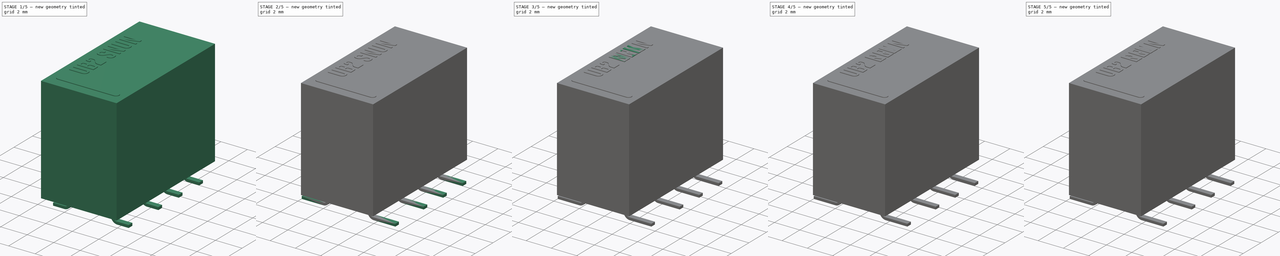
[diagram: build sequence overview — one tinted view per stage of 5, left to right]
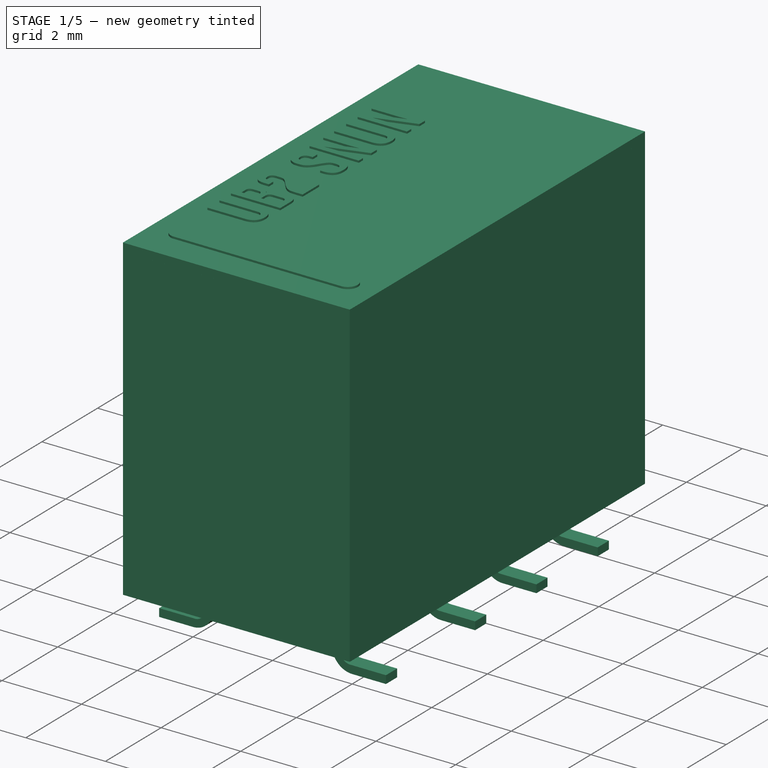
[diagram: stage 1 of 5 — iso view after this stage's code; geometry added in this stage tinted green]
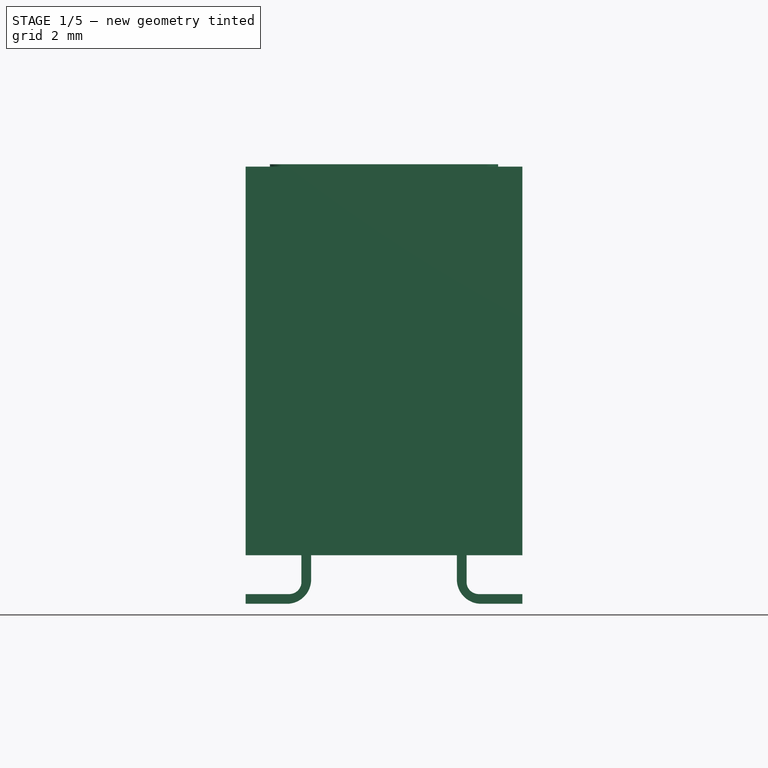
[diagram: stage 1 of 5 — front view after this stage's code; geometry added in this stage tinted green]
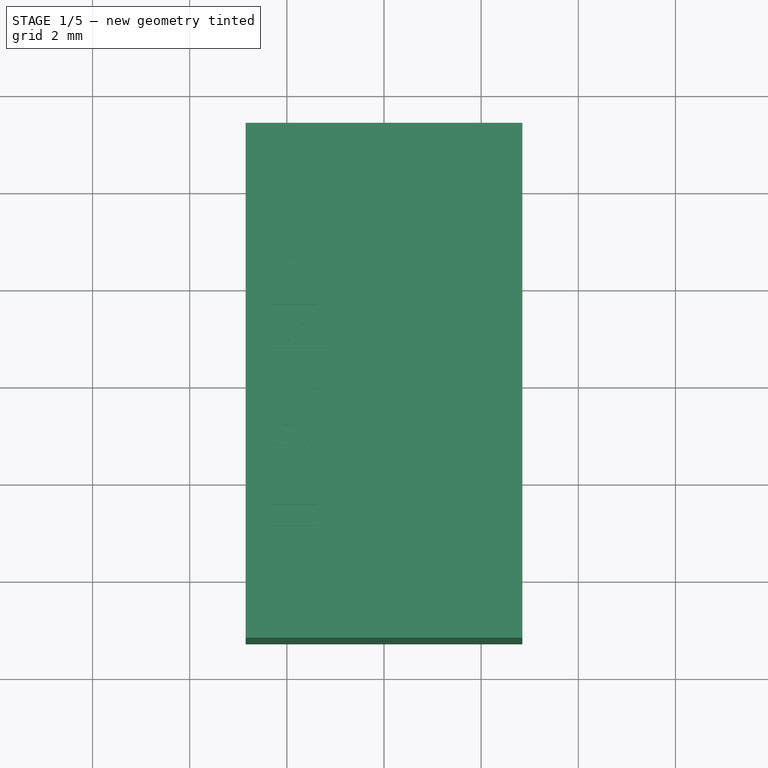
[diagram: stage 1 of 5 — top view after this stage's code; geometry added in this stage tinted green]
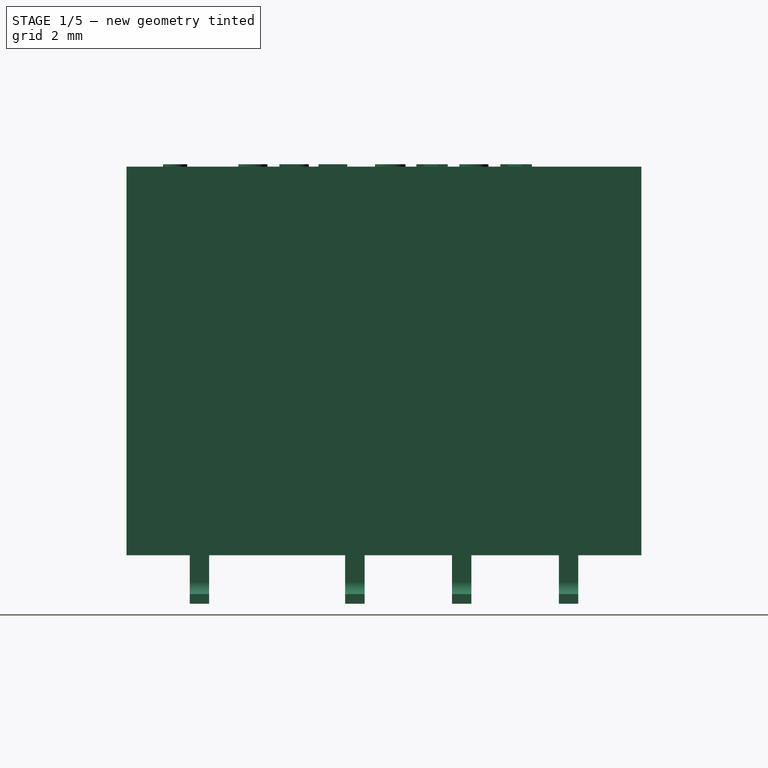
[diagram: stage 1 of 5 — right view after this stage's code; geometry added in this stage tinted green]
FCSTD DOCUMENT  (FreeCAD 0.19R16945 (Git))
Label: Kemet UB2 Series
License: All rights reserved
LicenseURL: http://en.wikipedia.org/wiki/All_rights_reserved
objects: Sketcher::SketchObject×36, PartDesign::Body×36, PartDesign::Pad×30, PartDesign::FeatureBase×24, PartDesign::Pocket×12, PartDesign::Fillet×12, Part::FeaturePython×12, Part::Part2DObjectPython×6, Part::MultiFuse×6, App::Part×6
note: 216 computed .brp shape members not serialized (recipe doc carries the construction recipe); baked Part::Feature solids carry a one-line shape summary decoded from their .brp

FEATURE [PartDesign::Body] Body021  label="UB2-NEN_Body"
  Group = -> [Sketch026,Pad019,Sketch028,Pocket008,Sketch024,Pocket009,Sketch029,Pad020,Sketch025,Pad023,ShapeString003,Pad022]
  Origin = -> Origin025
  Tip = -> Pad022
FEATURE [App::Part] Part003  label="UB2-NEN"
  Group = -> [Body021,Body020,Body023,Body018,Body022,Body019,Array006,Array007,Fusion003]
  Origin = -> Origin026
FEATURE [Sketcher::SketchObject] Sketch031
  MapMode = 5
  Support = -> [XY_Plane028]
  sketch-geometry (4):
    g0: LineSegment StartX=2.85 StartY=-5.3 StartZ=0 EndX=-2.85 EndY=-5.3 EndZ=0
    g1: LineSegment StartX=-2.85 StartY=-5.3 StartZ=0 EndX=-2.85 EndY=5.3 EndZ=0
    g2: LineSegment StartX=-2.85 StartY=5.3 StartZ=0 EndX=2.85 EndY=5.3 EndZ=0
    g3: LineSegment StartX=2.85 StartY=5.3 StartZ=0 EndX=2.85 EndY=-5.3 EndZ=0
  constraints (10):
    c: Coincident(g0,g1)
    c: Coincident(g1,g2)
    c: Coincident(g2,g3)
    c: Coincident(g3,g0)
    c: Horizontal(g0)
    c: Vertical(g1)
    c: Symmetric(g1,g2,g-2)
    c: Symmetric(g2,g0,g-1)
    c: DistanceX(g2,g2) = 5.7
    c: DistanceY(g3,g3) = 10.6
FEATURE [PartDesign::Pad] Pad028  label="MainPad004"
  Length = 8.8
  Length2 = 100
  Profile = -> Sketch031
  Type = 0
FEATURE [Sketcher::SketchObject] Sketch030
  ExternalGeometry = -> [Pad028]
  MapMode = 5
  Placement = pos=(-2.85,0,0) rot=(0.57735,-0.57735,-0.57735;2.0944rad)
  Support = -> [Pad028]
  sketch-geometry (4):
    g0: LineSegment StartX=-5.3 StartY=0 StartZ=0 EndX=5.3 EndY=0 EndZ=0
    g1: LineSegment StartX=5.3 StartY=0 StartZ=0 EndX=5.3 EndY=1 EndZ=0
    g2: LineSegment StartX=5.3 StartY=1 StartZ=0 EndX=-5.3 EndY=1 EndZ=0
    g3: LineSegment StartX=-5.3 StartY=1 StartZ=0 EndX=-5.3 EndY=0 EndZ=0
  constraints (11):
    c: Coincident(g0,g1)
    c: Coincident(g1,g2)
    c: Coincident(g2,g3)
    c: Coincident(g3,g0)
    c: Horizontal(g0)
    c: Horizontal(g2)
    c: Vertical(g1)
    c: Vertical(g3)
    c: Coincident(g0,g-3)
    c: PointOnObject(g1,g-4)
    c: DistanceY(g1,g1) = 1
FEATURE [PartDesign::Pocket] Pocket010  label="BottomPocket008"
  BaseFeature = -> Pad028
  Length = 5
  Length2 = 100
  Profile = -> Sketch030
  Type = 1
FEATURE [Sketcher::SketchObject] Sketch032
  ExternalGeometry = -> [Pocket010]
  MapMode = 5
  Placement = pos=(0,0,1) rot=(1,0,0;3.14159rad)
  Support = -> [Pocket010]
  sketch-geometry (4):
    g0: LineSegment StartX=-2.65 StartY=5.1 StartZ=0 EndX=2.65 EndY=5.1 EndZ=0
    g1: LineSegment StartX=2.65 StartY=5.1 StartZ=0 EndX=2.65 EndY=-5.1 EndZ=0
    g2: LineSegment StartX=2.65 StartY=-5.1 StartZ=0 EndX=-2.65 EndY=-5.1 EndZ=0
    g3: LineSegment StartX=-2.65 StartY=-5.1 StartZ=0 EndX=-2.65 EndY=5.1 EndZ=0
  constraints (10):
    c: Coincident(g0,g1)
    c: Coincident(g1,g2)
    c: Coincident(g2,g3)
    c: Coincident(g3,g0)
    c: Horizontal(g2)
    c: Vertical(g3)
    c: Symmetric(g0,g0,g-2)
    c: Symmetric(g0,g1,g-1)
    c: DistanceX(g0,g-3) = 0.2
    c: DistanceY(g0,g-3) = 0.2
FEATURE [PartDesign::Pocket] Pocket011  label="BottomPocket009"
  BaseFeature = -> Pocket010
  Length = 0.1
  Length2 = 100
  Profile = -> Sketch032
  Type = 0
FEATURE [App::Part] Part004  label="UB2-SNU"
  Group = -> [Body024,Body025,Body026,Body027,Body029,Body028,Array008,Array009,Fusion004]
  Origin = -> Origin029
FEATURE [Sketcher::SketchObject] Sketch036
  MapMode = 5
  Placement = pos=(0,0,0) rot=(1,0,0;1.5708rad)
  Support = -> [XZ_Plane038]
  sketch-geometry (7):
    g0: LineSegment StartX=-1.7 StartY=1 StartZ=0 EndX=-1.7 EndY=0.2 EndZ=0
    g1: LineSegment StartX=-1.7 StartY=0.2 StartZ=0 EndX=-2.85 EndY=0.2 EndZ=0
    g2: LineSegment StartX=-2.85 StartY=0.2 StartZ=0 EndX=-2.85 EndY=0 EndZ=0
    g3: LineSegment StartX=-2.85 StartY=0 StartZ=0 EndX=-1.5 EndY=0 EndZ=0
    g4: LineSegment StartX=-1.5 StartY=0 StartZ=0 EndX=-1.5 EndY=1 EndZ=0
    g5: LineSegment StartX=-1.5 StartY=1 StartZ=0 EndX=-1.7 EndY=1 EndZ=0
    g6: GeomPoint X=-1.6 Y=1 Z=0
  constraints (19):
    c: Vertical(g0)
    c: Coincident(g0,g1)
    c: Horizontal(g1)
    c: Coincident(g1,g2)
    c: PointOnObject(g2,g-1)
    c: Vertical(g2)
    c: Coincident(g2,g3)
    c: Horizontal(g3)
    c: Coincident(g3,g4)
    c: Vertical(g4)
    c: Coincident(g4,g5)
    c: Coincident(g5,g0)
    c: Horizontal(g5)
    c: DistanceY(g2,g2) = 0.2
    c: Symmetric(g0,g4,g6)
    c: DistanceX(g6,g-1) = 1.6
    c: Equal(g5,g2)
    c: DistanceY(g4,g4) = 1
    c: DistanceX(g2,g-1) = 2.85
FEATURE [PartDesign::Pad] Pad029
  Length = 0.4
  Length2 = 100
  Midplane = true
  Placement = pos=(0,0,0) rot=(1,0,0;1.5708rad)
  Profile = -> Sketch036
  Type = 0
FEATURE [PartDesign::Fillet] Fillet011
  Base = -> Pad029 [Edge2]
  BaseFeature = -> Pad029
  Placement = pos=(0,0,0) rot=(1,0,0;1.5708rad)
  Radius = 0.25
FEATURE [PartDesign::Fillet] Fillet010
  Base = -> Fillet011 [Edge20]
  BaseFeature = -> Fillet011
  Placement = pos=(0,0,0) rot=(1,0,0;1.5708rad)
  Radius = 0.5
FEATURE [PartDesign::Body] Body034
  Group = -> [Sketch036,Pad029,Fillet011,Fillet010]
  Origin = -> Origin038
  Tip = -> Fillet010
FEATURE [PartDesign::FeatureBase] Clone022
  BaseFeature = -> Body034
FEATURE [PartDesign::Body] Body031
  BaseFeature = -> Body034
  Group = -> [Clone022]
  Origin = -> Origin040
  Placement = pos=(0,-3.8,0) rot=(0,0,1;0rad)
  Tip = -> Clone022
FEATURE [PartDesign::FeatureBase] Clone020
  BaseFeature = -> Body031
  Placement = pos=(0,-3.8,0) rot=(0,0,1;0rad)
FEATURE [PartDesign::Body] Body030
  Group = -> [Clone020]
  Origin = -> Origin035
  Placement = pos=(0,3.2,0) rot=(0,0,1;0rad)
  Tip = -> Clone020
FEATURE [PartDesign::FeatureBase] Clone023
  BaseFeature = -> Body034
FEATURE [PartDesign::Body] Body033
  BaseFeature = -> Body034
  Group = -> [Clone023]
  Origin = -> Origin041
  Placement = pos=(0,-3.8,0) rot=(0,0,1;3.14159rad)
  Tip = -> Clone023
FEATURE [PartDesign::FeatureBase] Clone021
  BaseFeature = -> Body033
  Placement = pos=(0,-3.8,0) rot=(0,0,1;3.14159rad)
FEATURE [PartDesign::Body] Body032
  Group = -> [Clone021]
  Origin = -> Origin037
  Placement = pos=(0,3.2,0) rot=(0,0,1;0rad)
  Tip = -> Clone021
FEATURE [Part::FeaturePython] Array010  # Draft array (typed FeaturePython)
  Angle = 360
  ArrayType = 0
  Axis = (0,0,1)
  Base = -> Body032
  Center = (0,0,0)
  Fuse = false
  IntervalAxis = (0,0,0)
  IntervalX = (1,0,0)
  IntervalY = (0,2.2,0)
  IntervalZ = (0,0,1)
  NumberPolar = 1
  NumberX = 1
  NumberY = 3
  NumberZ = 1
FEATURE [Part::FeaturePython] Array011  # Draft array (typed FeaturePython)
  Angle = 360
  ArrayType = 0
  Axis = (0,0,1)
  Base = -> Body030
  Center = (0,0,0)
  Fuse = false
  IntervalAxis = (0,0,0)
  IntervalX = (1,0,0)
  IntervalY = (0,2.2,0)
  IntervalZ = (0,0,1)
  NumberPolar = 1
  NumberX = 1
  NumberY = 3
  NumberZ = 1
FEATURE [Part::MultiFuse] Fusion005  label="UB2-SNUN_Pins"
  Shapes = -> [Body033,Array010,Array011,Body031]
FEATURE [Sketcher::SketchObject] Sketch040
  MapMode = 5
  Support = -> [XY_Plane038]
  sketch-geometry (4):
    g0: LineSegment StartX=2.85 StartY=-5.3 StartZ=0 EndX=-2.85 EndY=-5.3 EndZ=0
    g1: LineSegment StartX=-2.85 StartY=-5.3 StartZ=0 EndX=-2.85 EndY=5.3 EndZ=0
    g2: LineSegment StartX=-2.85 StartY=5.3 StartZ=0 EndX=2.85 EndY=5.3 EndZ=0
    g3: LineSegment StartX=2.85 StartY=5.3 StartZ=0 EndX=2.85 EndY=-5.3 EndZ=0
  constraints (10):
    c: Coincident(g0,g1)
    c: Coincident(g1,g2)
    c: Coincident(g2,g3)
    c: Coincident(g3,g0)
    c: Horizontal(g0)
    c: Vertical(g1)
    c: Symmetric(g1,g2,g-2)
    c: Symmetric(g2,g0,g-1)
    c: DistanceX(g2,g2) = 5.7
    c: DistanceY(g3,g3) = 10.6
FEATURE [PartDesign::Pad] Pad032  label="MainPad005"
  Length = 9
  Length2 = 100
  Profile = -> Sketch040
  Type = 0
FEATURE [Sketcher::SketchObject] Sketch037
  ExternalGeometry = -> [Pad032]
  MapMode = 5
  Placement = pos=(-2.85,0,0) rot=(0.57735,-0.57735,-0.57735;2.0944rad)
  Support = -> [Pad032]
  sketch-geometry (4):
    g0: LineSegment StartX=-5.3 StartY=0 StartZ=0 EndX=5.3 EndY=0 EndZ=0
    g1: LineSegment StartX=5.3 StartY=0 StartZ=0 EndX=5.3 EndY=1 EndZ=0
    g2: LineSegment StartX=5.3 StartY=1 StartZ=0 EndX=-5.3 EndY=1 EndZ=0
    g3: LineSegment StartX=-5.3 StartY=1 StartZ=0 EndX=-5.3 EndY=0 EndZ=0
  constraints (11):
    c: Coincident(g0,g1)
    c: Coincident(g1,g2)
    c: Coincident(g2,g3)
    c: Coincident(g3,g0)
    c: Horizontal(g0)
    c: Horizontal(g2)
    c: Vertical(g1)
    c: Vertical(g3)
    c: Coincident(g0,g-3)
    c: PointOnObject(g1,g-4)
    c: DistanceY(g1,g1) = 1
FEATURE [PartDesign::Pocket] Pocket012  label="BottomPocket010"
  BaseFeature = -> Pad032
  Length = 5
  Length2 = 100
  Profile = -> Sketch037
  Type = 1
FEATURE [Sketcher::SketchObject] Sketch039
  ExternalGeometry = -> [Pocket012]
  MapMode = 5
  Placement = pos=(0,0,1) rot=(1,0,0;3.14159rad)
  Support = -> [Pocket012]
  sketch-geometry (4):
    g0: LineSegment StartX=-2.65 StartY=5.1 StartZ=0 EndX=2.65 EndY=5.1 EndZ=0
    g1: LineSegment StartX=2.65 StartY=5.1 StartZ=0 EndX=2.65 EndY=-5.1 EndZ=0
    g2: LineSegment StartX=2.65 StartY=-5.1 StartZ=0 EndX=-2.65 EndY=-5.1 EndZ=0
    g3: LineSegment StartX=-2.65 StartY=-5.1 StartZ=0 EndX=-2.65 EndY=5.1 EndZ=0
  constraints (10):
    c: Coincident(g0,g1)
    c: Coincident(g1,g2)
    c: Coincident(g2,g3)
    c: Coincident(g3,g0)
    c: Horizontal(g2)
    c: Vertical(g3)
    c: Symmetric(g0,g0,g-2)
    c: Symmetric(g0,g1,g-1)
    c: DistanceX(g0,g-3) = 0.2
    c: DistanceY(g0,g-3) = 0.2
FEATURE [PartDesign::Pocket] Pocket013  label="BottomPocket011"
  BaseFeature = -> Pocket012
  Length = 0.1
  Length2 = 100
  Profile = -> Sketch039
  Type = 0
FEATURE [Sketcher::SketchObject] Sketch041
  MapMode = 5
  Placement = pos=(0,0,1.1) rot=(1,0,0;3.14159rad)
  Support = -> [Pocket013]
  sketch-geometry (8):
    g0: LineSegment StartX=-1.45778 StartY=4.66711 StartZ=0 EndX=1.45778 EndY=4.66711 EndZ=0
    g1: LineSegment StartX=2.07753 StartY=4.04736 StartZ=0 EndX=2.07753 EndY=-4.04736 EndZ=0
    g2: LineSegment StartX=1.45778 StartY=-4.66711 StartZ=0 EndX=-1.45778 EndY=-4.66711 EndZ=0
    g3: LineSegment StartX=-2.07753 StartY=-4.04736 StartZ=0 EndX=-2.07753 EndY=4.04736 EndZ=0
    g4: ArcOfCircle CenterX=-1.45778 CenterY=4.04736 CenterZ=0 NormalX=0 NormalY=0 NormalZ=1 AngleXU=0 Radius=0.619749 StartAngle=1.5708 EndAngle=3.14159
    g5: ArcOfCircle CenterX=1.45778 CenterY=4.04736 CenterZ=0 NormalX=0 NormalY=0 NormalZ=1 AngleXU=0 Radius=0.619749 StartAngle=3e-16 EndAngle=1.5708
    g6: ArcOfCircle CenterX=1.45778 CenterY=-4.04736 CenterZ=0 NormalX=0 NormalY=0 NormalZ=1 AngleXU=0 Radius=0.619749 StartAngle=4.71239 EndAngle=6.28319
    g7: ArcOfCircle CenterX=-1.45778 CenterY=-4.04736 CenterZ=0 NormalX=0 NormalY=0 NormalZ=1 AngleXU=0 Radius=0.619749 StartAngle=3.14159 EndAngle=4.71239
  constraints (15):
    c: Horizontal(g0)
    c: Horizontal(g2)
    c: Vertical(g1)
    c: Vertical(g3)
    c: Tangent(g0,g4) = 1.5708
    c: Tangent(g3,g4) = 1.5708
    c: Tangent(g0,g5) = 1.5708
    c: Tangent(g1,g5) = 1.5708
    c: Tangent(g1,g6) = 1.5708
    c: Tangent(g2,g6) = 1.5708
    c: Tangent(g2,g7) = 1.5708
    c: Tangent(g3,g7) = 1.5708
    c: Equal(g7,g6)
    c: Symmetric(g3,g1,g-2)
    c: Symmetric(g0,g2,g-1)
FEATURE [PartDesign::Pad] Pad033  label="BottomPad005"
  BaseFeature = -> Pocket013
  Length = 0.05
  Length2 = 100
  Profile = -> Sketch041
  Type = 0
FEATURE [Sketcher::SketchObject] Sketch038
  ExternalGeometry = -> [Pad033]
  MapMode = 5
  Placement = pos=(0,0,9) rot=(0,0,1;0rad)
  Support = -> [Pad033]
  sketch-geometry (4):
    g0: ArcOfCircle CenterX=-2.1 CenterY=-4.3 CenterZ=0 NormalX=0 NormalY=0 NormalZ=1 AngleXU=0 Radius=0.25 StartAngle=1.5708 EndAngle=4.71239
    g1: ArcOfCircle CenterX=2.1 CenterY=-4.3 CenterZ=0 NormalX=0 NormalY=0 NormalZ=1 AngleXU=0 Radius=0.25 StartAngle=4.71239 EndAngle=7.85398
    g2: LineSegment StartX=-2.1 StartY=-4.55 StartZ=0 EndX=2.1 EndY=-4.55 EndZ=0
    g3: LineSegment StartX=-2.1 StartY=-4.05 StartZ=0 EndX=2.1 EndY=-4.05 EndZ=0
  constraints (9):
    c: Tangent(g0,g3) = 1.5708
    c: Tangent(g0,g2) = -1.5708
    c: Tangent(g2,g1) = -1.5708
    c: Tangent(g3,g1) = 1.5708
    c: Horizontal(g2)
    c: Symmetric(g1,g0,g-2)
    c: DistanceY(g1,g1) = 0.5
    c: DistanceY(g-3,g0) = 1
    c: DistanceX(g-3,g0) = 0.75
FEATURE [PartDesign::Pad] Pad031  label="CoilMarkingPad005"
  BaseFeature = -> Pad033
  Length = 0.05
  Length2 = 100
  Profile = -> Sketch038
  Type = 0
FEATURE [Part::Part2DObjectPython] ShapeString005  # Draft 2D object (typed FeaturePython)
  AttachmentOffset = pos=(-1,-1,0) rot=(0,0,-1;1.5708rad)
  FontFile = <userpath>/Desktop/GitHub/freecad-projects/00-fonts/coolvetica condensed rg.ttf
  MapMode = 6
  Placement = pos=(-1.1,-3.05,9) rot=(0,0,1;1.5708rad)
  Size = 0.75
  String = UB2 SNUN
  Support = -> [Pad031]
  Tracking = 0.125
FEATURE [PartDesign::Pad] Pad030  label="ShapeStringPad005"
  BaseFeature = -> Pad031
  Length = 0.05
  Length2 = 100
  Profile = -> ShapeString005
  Refine = true
  Type = 0
FEATURE [PartDesign::Body] Body035  label="UB2-SNUN_Body"
  Group = -> [Sketch040,Pad032,Sketch037,Pocket012,Sketch039,Pocket013,Sketch041,Pad033,Sketch038,Pad031,ShapeString005,Pad030]
  Origin = -> Origin036
  Tip = -> Pad030
FEATURE [App::Part] Part005  label="UB2-SNUN"
  Group = -> [Body035,Body034,Body033,Body031,Body032,Body030,Array010,Array011,Fusion005]
  Origin = -> Origin039
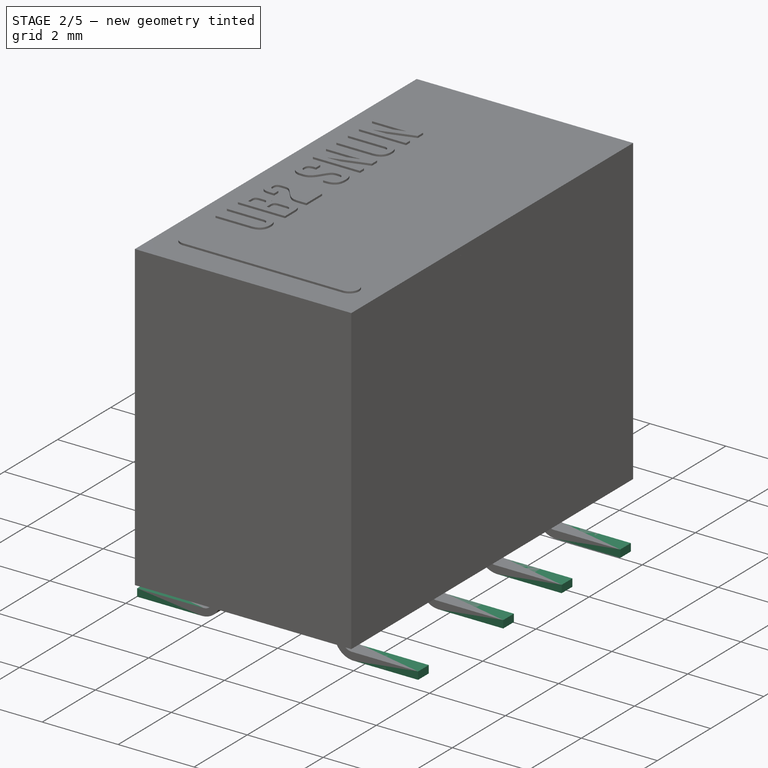
[diagram: stage 2 of 5 — iso view after this stage's code; geometry added in this stage tinted green]
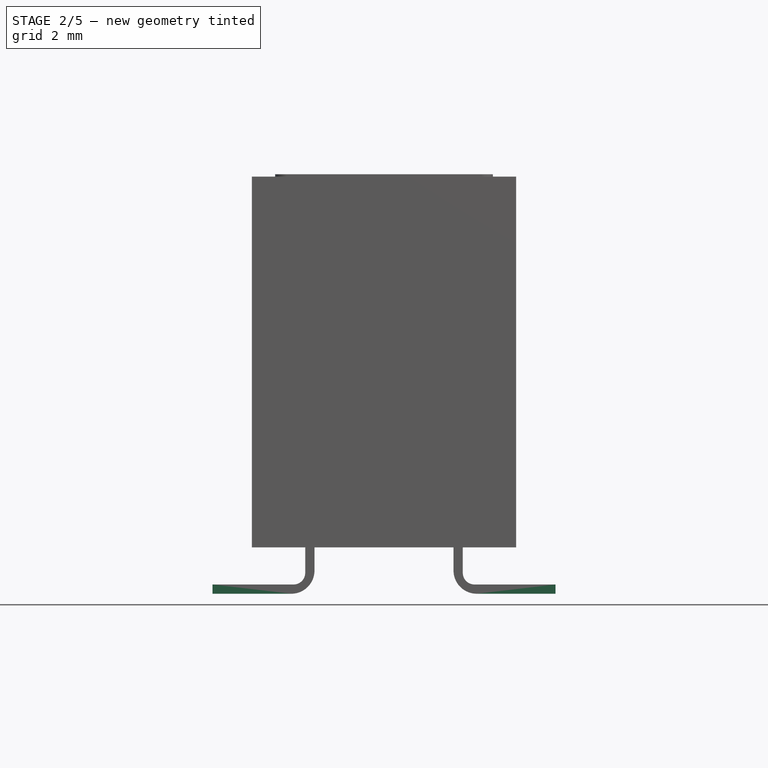
[diagram: stage 2 of 5 — front view after this stage's code; geometry added in this stage tinted green]
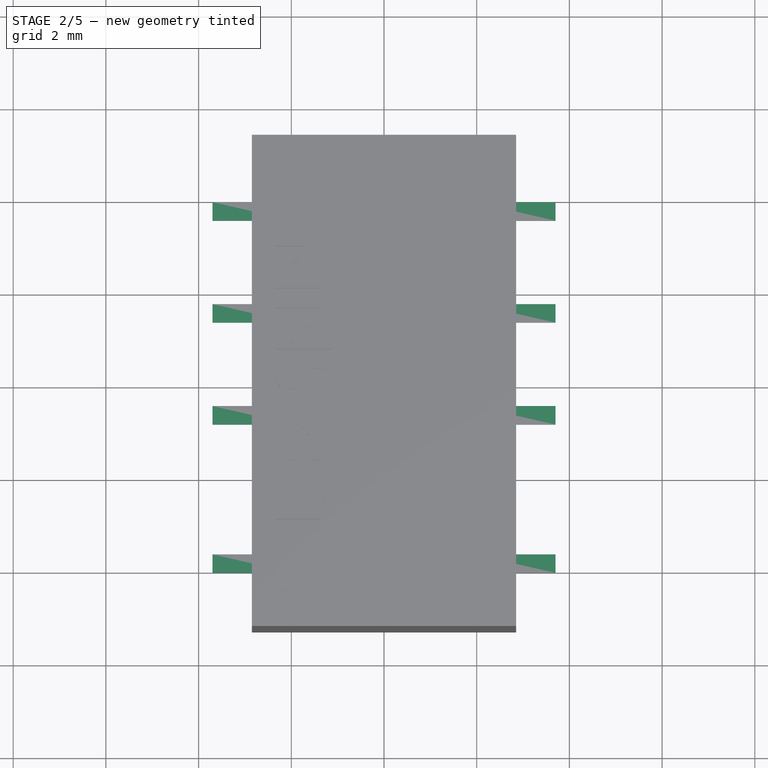
[diagram: stage 2 of 5 — top view after this stage's code; geometry added in this stage tinted green]
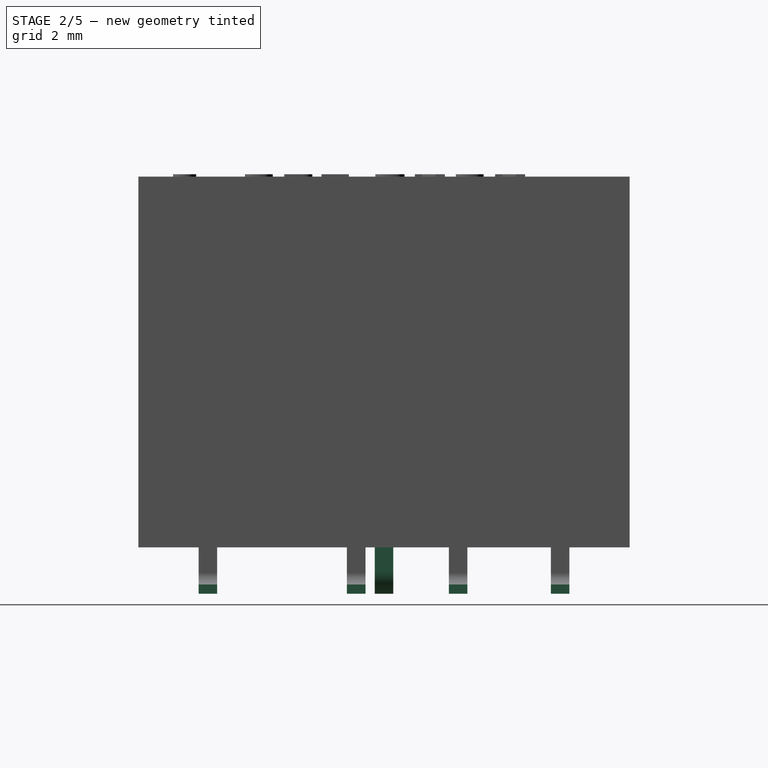
[diagram: stage 2 of 5 — right view after this stage's code; geometry added in this stage tinted green]
FEATURE [PartDesign::Body] Body012  label="UB2-NUN_Body"
  Group = -> [Sketch021,Pad014,Sketch019,Pocket006,Sketch020,Pocket007,Sketch018,Pad015,Sketch022,Pad018,ShapeString002,Pad017]
  Origin = -> Origin016
  Tip = -> Pad017
FEATURE [App::Part] Part002  label="UB2-NUN"
  Group = -> [Body012,Body015,Body014,Body017,Body013,Body016,Array004,Array005,Fusion002]
  Origin = -> Origin017
FEATURE [Sketcher::SketchObject] Sketch026
  MapMode = 5
  Support = -> [XY_Plane023]
  sketch-geometry (4):
    g0: LineSegment StartX=2.85 StartY=-5.3 StartZ=0 EndX=-2.85 EndY=-5.3 EndZ=0
    g1: LineSegment StartX=-2.85 StartY=-5.3 StartZ=0 EndX=-2.85 EndY=5.3 EndZ=0
    g2: LineSegment StartX=-2.85 StartY=5.3 StartZ=0 EndX=2.85 EndY=5.3 EndZ=0
    g3: LineSegment StartX=2.85 StartY=5.3 StartZ=0 EndX=2.85 EndY=-5.3 EndZ=0
  constraints (10):
    c: Coincident(g0,g1)
    c: Coincident(g1,g2)
    c: Coincident(g2,g3)
    c: Coincident(g3,g0)
    c: Horizontal(g0)
    c: Vertical(g1)
    c: Symmetric(g1,g2,g-2)
    c: Symmetric(g2,g0,g-1)
    c: DistanceX(g2,g2) = 5.7
    c: DistanceY(g3,g3) = 10.6
FEATURE [Sketcher::SketchObject] Sketch027
  MapMode = 5
  Placement = pos=(0,0,0) rot=(1,0,0;1.5708rad)
  Support = -> [XZ_Plane027]
  sketch-geometry (7):
    g0: LineSegment StartX=-1.7 StartY=1 StartZ=0 EndX=-1.7 EndY=0.2 EndZ=0
    g1: LineSegment StartX=-1.7 StartY=0.2 StartZ=0 EndX=-2.85 EndY=0.2 EndZ=0
    g2: LineSegment StartX=-2.85 StartY=0.2 StartZ=0 EndX=-2.85 EndY=0 EndZ=0
    g3: LineSegment StartX=-2.85 StartY=0 StartZ=0 EndX=-1.5 EndY=0 EndZ=0
    g4: LineSegment StartX=-1.5 StartY=0 StartZ=0 EndX=-1.5 EndY=1 EndZ=0
    g5: LineSegment StartX=-1.5 StartY=1 StartZ=0 EndX=-1.7 EndY=1 EndZ=0
    g6: GeomPoint X=-1.6 Y=1 Z=0
  constraints (19):
    c: Vertical(g0)
    c: Coincident(g0,g1)
    c: Horizontal(g1)
    c: Coincident(g1,g2)
    c: PointOnObject(g2,g-1)
    c: Vertical(g2)
    c: Coincident(g2,g3)
    c: Horizontal(g3)
    c: Coincident(g3,g4)
    c: Vertical(g4)
    c: Coincident(g4,g5)
    c: Coincident(g5,g0)
    c: Horizontal(g5)
    c: DistanceY(g2,g2) = 0.2
    c: Symmetric(g0,g4,g6)
    c: DistanceX(g6,g-1) = 1.6
    c: Equal(g5,g2)
    c: DistanceY(g4,g4) = 1
    c: DistanceX(g2,g-1) = 2.85
FEATURE [PartDesign::Pad] Pad019  label="MainPad003"
  Length = 9
  Length2 = 100
  Profile = -> Sketch026
  Type = 0
FEATURE [Sketcher::SketchObject] Sketch028
  ExternalGeometry = -> [Pad019]
  MapMode = 5
  Placement = pos=(-2.85,0,0) rot=(0.57735,-0.57735,-0.57735;2.0944rad)
  Support = -> [Pad019]
  sketch-geometry (4):
    g0: LineSegment StartX=-5.3 StartY=0 StartZ=0 EndX=5.3 EndY=0 EndZ=0
    g1: LineSegment StartX=5.3 StartY=0 StartZ=0 EndX=5.3 EndY=1 EndZ=0
    g2: LineSegment StartX=5.3 StartY=1 StartZ=0 EndX=-5.3 EndY=1 EndZ=0
    g3: LineSegment StartX=-5.3 StartY=1 StartZ=0 EndX=-5.3 EndY=0 EndZ=0
  constraints (11):
    c: Coincident(g0,g1)
    c: Coincident(g1,g2)
    c: Coincident(g2,g3)
    c: Coincident(g3,g0)
    c: Horizontal(g0)
    c: Horizontal(g2)
    c: Vertical(g1)
    c: Vertical(g3)
    c: Coincident(g0,g-3)
    c: PointOnObject(g1,g-4)
    c: DistanceY(g1,g1) = 1
FEATURE [PartDesign::Pocket] Pocket008  label="BottomPocket006"
  BaseFeature = -> Pad019
  Length = 5
  Length2 = 100
  Profile = -> Sketch028
  Type = 1
FEATURE [Sketcher::SketchObject] Sketch024
  ExternalGeometry = -> [Pocket008]
  MapMode = 5
  Placement = pos=(0,0,1) rot=(1,0,0;3.14159rad)
  Support = -> [Pocket008]
  sketch-geometry (4):
    g0: LineSegment StartX=-2.65 StartY=5.1 StartZ=0 EndX=2.65 EndY=5.1 EndZ=0
    g1: LineSegment StartX=2.65 StartY=5.1 StartZ=0 EndX=2.65 EndY=-5.1 EndZ=0
    g2: LineSegment StartX=2.65 StartY=-5.1 StartZ=0 EndX=-2.65 EndY=-5.1 EndZ=0
    g3: LineSegment StartX=-2.65 StartY=-5.1 StartZ=0 EndX=-2.65 EndY=5.1 EndZ=0
  constraints (10):
    c: Coincident(g0,g1)
    c: Coincident(g1,g2)
    c: Coincident(g2,g3)
    c: Coincident(g3,g0)
    c: Horizontal(g2)
    c: Vertical(g3)
    c: Symmetric(g0,g0,g-2)
    c: Symmetric(g0,g1,g-1)
    c: DistanceX(g0,g-3) = 0.2
    c: DistanceY(g0,g-3) = 0.2
FEATURE [PartDesign::Pad] Pad021
  Length = 0.4
  Length2 = 100
  Midplane = true
  Placement = pos=(0,0,0) rot=(1,0,0;1.5708rad)
  Profile = -> Sketch027
  Type = 0
FEATURE [PartDesign::Pocket] Pocket009  label="BottomPocket007"
  BaseFeature = -> Pocket008
  Length = 0.1
  Length2 = 100
  Profile = -> Sketch024
  Type = 0
FEATURE [PartDesign::Fillet] Fillet006
  Base = -> Pad021 [Edge2]
  BaseFeature = -> Pad021
  Placement = pos=(0,0,0) rot=(1,0,0;1.5708rad)
  Radius = 0.25
FEATURE [PartDesign::Fillet] Fillet007
  Base = -> Fillet006 [Edge20]
  BaseFeature = -> Fillet006
  Placement = pos=(0,0,0) rot=(1,0,0;1.5708rad)
  Radius = 0.5
FEATURE [Sketcher::SketchObject] Sketch033
  MapMode = 5
  Placement = pos=(0,0,1.1) rot=(1,0,0;3.14159rad)
  Support = -> [Pocket011]
  sketch-geometry (8):
    g0: LineSegment StartX=-1.45778 StartY=4.66711 StartZ=0 EndX=1.45778 EndY=4.66711 EndZ=0
    g1: LineSegment StartX=2.07753 StartY=4.04736 StartZ=0 EndX=2.07753 EndY=-4.04736 EndZ=0
    g2: LineSegment StartX=1.45778 StartY=-4.66711 StartZ=0 EndX=-1.45778 EndY=-4.66711 EndZ=0
    g3: LineSegment StartX=-2.07753 StartY=-4.04736 StartZ=0 EndX=-2.07753 EndY=4.04736 EndZ=0
    g4: ArcOfCircle CenterX=-1.45778 CenterY=4.04736 CenterZ=0 NormalX=0 NormalY=0 NormalZ=1 AngleXU=0 Radius=0.619749 StartAngle=1.5708 EndAngle=3.14159
    g5: ArcOfCircle CenterX=1.45778 CenterY=4.04736 CenterZ=0 NormalX=0 NormalY=0 NormalZ=1 AngleXU=0 Radius=0.619749 StartAngle=3e-16 EndAngle=1.5708
    g6: ArcOfCircle CenterX=1.45778 CenterY=-4.04736 CenterZ=0 NormalX=0 NormalY=0 NormalZ=1 AngleXU=0 Radius=0.619749 StartAngle=4.71239 EndAngle=6.28319
    g7: ArcOfCircle CenterX=-1.45778 CenterY=-4.04736 CenterZ=0 NormalX=0 NormalY=0 NormalZ=1 AngleXU=0 Radius=0.619749 StartAngle=3.14159 EndAngle=4.71239
  constraints (15):
    c: Horizontal(g0)
    c: Horizontal(g2)
    c: Vertical(g1)
    c: Vertical(g3)
    c: Tangent(g0,g4) = 1.5708
    c: Tangent(g3,g4) = 1.5708
    c: Tangent(g0,g5) = 1.5708
    c: Tangent(g1,g5) = 1.5708
    c: Tangent(g1,g6) = 1.5708
    c: Tangent(g2,g6) = 1.5708
    c: Tangent(g2,g7) = 1.5708
    c: Tangent(g3,g7) = 1.5708
    c: Equal(g7,g6)
    c: Symmetric(g3,g1,g-2)
    c: Symmetric(g0,g2,g-1)
FEATURE [PartDesign::Pad] Pad026  label="BottomPad004"
  BaseFeature = -> Pocket011
  Length = 0.05
  Length2 = 100
  Profile = -> Sketch033
  Type = 0
FEATURE [Sketcher::SketchObject] Sketch034
  ExternalGeometry = -> [Pad026]
  MapMode = 5
  Placement = pos=(0,0,8.8) rot=(0,0,1;0rad)
  Support = -> [Pad026]
  sketch-geometry (4):
    g0: ArcOfCircle CenterX=-2.1 CenterY=-4.3 CenterZ=0 NormalX=0 NormalY=0 NormalZ=1 AngleXU=0 Radius=0.25 StartAngle=1.5708 EndAngle=4.71239
    g1: ArcOfCircle CenterX=2.1 CenterY=-4.3 CenterZ=0 NormalX=0 NormalY=0 NormalZ=1 AngleXU=0 Radius=0.25 StartAngle=4.71239 EndAngle=7.85398
    g2: LineSegment StartX=-2.1 StartY=-4.55 StartZ=0 EndX=2.1 EndY=-4.55 EndZ=0
    g3: LineSegment StartX=-2.1 StartY=-4.05 StartZ=0 EndX=2.1 EndY=-4.05 EndZ=0
  constraints (9):
    c: Tangent(g0,g3) = 1.5708
    c: Tangent(g0,g2) = -1.5708
    c: Tangent(g2,g1) = -1.5708
    c: Tangent(g3,g1) = 1.5708
    c: Horizontal(g2)
    c: Symmetric(g1,g0,g-2)
    c: DistanceY(g1,g1) = 0.5
    c: DistanceY(g-3,g0) = 1
    c: DistanceX(g-3,g0) = 0.75
FEATURE [PartDesign::Pad] Pad027  label="CoilMarkingPad004"
  BaseFeature = -> Pad026
  Length = 0.05
  Length2 = 100
  Profile = -> Sketch034
  Type = 0
FEATURE [Part::Part2DObjectPython] ShapeString004  # Draft 2D object (typed FeaturePython)
  AttachmentOffset = pos=(-1,-1,0) rot=(0,0,-1;1.5708rad)
  FontFile = <userpath>/Desktop/GitHub/freecad-projects/00-fonts/coolvetica condensed rg.ttf
  MapMode = 6
  Placement = pos=(-1.1,-3.05,8.8) rot=(0,0,1;1.5708rad)
  Size = 0.75
  String = UB2 SNU
  Support = -> [Pad027]
  Tracking = 0.125
FEATURE [PartDesign::Pad] Pad025  label="ShapeStringPad004"
  BaseFeature = -> Pad027
  Length = 0.05
  Length2 = 100
  Profile = -> ShapeString004
  Refine = true
  Type = 0
FEATURE [PartDesign::Body] Body024  label="UB2-SNU_Body"
  Group = -> [Sketch031,Pad028,Sketch030,Pocket010,Sketch032,Pocket011,Sketch033,Pad026,Sketch034,Pad027,ShapeString004,Pad025]
  Origin = -> Origin030
  Tip = -> Pad025
FEATURE [Sketcher::SketchObject] Sketch035
  MapMode = 5
  Placement = pos=(0,0,0) rot=(1,0,0;1.5708rad)
  Support = -> [XZ_Plane033]
  sketch-geometry (7):
    g0: LineSegment StartX=-1.7 StartY=1 StartZ=0 EndX=-1.7 EndY=0.2 EndZ=0
    g1: LineSegment StartX=-1.7 StartY=0.2 StartZ=0 EndX=-3.7 EndY=0.2 EndZ=0
    g2: LineSegment StartX=-3.7 StartY=0.2 StartZ=0 EndX=-3.7 EndY=0 EndZ=0
    g3: LineSegment StartX=-3.7 StartY=0 StartZ=0 EndX=-1.5 EndY=0 EndZ=0
    g4: LineSegment StartX=-1.5 StartY=0 StartZ=0 EndX=-1.5 EndY=1 EndZ=0
    g5: LineSegment StartX=-1.5 StartY=1 StartZ=0 EndX=-1.7 EndY=1 EndZ=0
    g6: GeomPoint X=-1.6 Y=1 Z=0
  constraints (19):
    c: Vertical(g0)
    c: Coincident(g0,g1)
    c: Horizontal(g1)
    c: Coincident(g1,g2)
    c: PointOnObject(g2,g-1)
    c: Vertical(g2)
    c: Coincident(g2,g3)
    c: Horizontal(g3)
    c: Coincident(g3,g4)
    c: Vertical(g4)
    c: Coincident(g4,g5)
    c: Coincident(g5,g0)
    c: Horizontal(g5)
    c: DistanceY(g2,g2) = 0.2
    c: Symmetric(g0,g4,g6)
    c: DistanceX(g6,g-1) = 1.6
    c: Equal(g5,g2)
    c: DistanceY(g4,g4) = 1
    c: DistanceX(g2,g-1) = 3.7
FEATURE [PartDesign::Pad] Pad024
  Length = 0.4
  Length2 = 100
  Midplane = true
  Placement = pos=(0,0,0) rot=(1,0,0;1.5708rad)
  Profile = -> Sketch035
  Type = 0
FEATURE [PartDesign::Fillet] Fillet008
  Base = -> Pad024 [Edge2]
  BaseFeature = -> Pad024
  Placement = pos=(0,0,0) rot=(1,0,0;1.5708rad)
  Radius = 0.25
FEATURE [PartDesign::Fillet] Fillet009
  Base = -> Fillet008 [Edge20]
  BaseFeature = -> Fillet008
  Placement = pos=(0,0,0) rot=(1,0,0;1.5708rad)
  Radius = 0.5
FEATURE [PartDesign::Body] Body025
  Group = -> [Sketch035,Pad024,Fillet008,Fillet009]
  Origin = -> Origin034
  Tip = -> Fillet009
FEATURE [PartDesign::FeatureBase] Clone016
  BaseFeature = -> Body025
FEATURE [PartDesign::FeatureBase] Clone019
  BaseFeature = -> Body025
FEATURE [PartDesign::Body] Body026
  BaseFeature = -> Body025
  Group = -> [Clone016]
  Origin = -> Origin033
  Placement = pos=(0,-3.8,0) rot=(0,0,1;3.14159rad)
  Tip = -> Clone016
FEATURE [PartDesign::FeatureBase] Clone017
  BaseFeature = -> Body026
  Placement = pos=(0,-3.8,0) rot=(0,0,1;3.14159rad)
FEATURE [PartDesign::Body] Body027
  BaseFeature = -> Body025
  Group = -> [Clone019]
  Origin = -> Origin032
  Placement = pos=(0,-3.8,0) rot=(0,0,1;0rad)
  Tip = -> Clone019
FEATURE [PartDesign::FeatureBase] Clone018
  BaseFeature = -> Body027
  Placement = pos=(0,-3.8,0) rot=(0,0,1;0rad)
FEATURE [PartDesign::Body] Body028
  BaseFeature = -> Body027
  Group = -> [Clone018]
  Origin = -> Origin028
  Placement = pos=(0,3.2,0) rot=(0,0,1;0rad)
  Tip = -> Clone018
FEATURE [PartDesign::Body] Body029
  BaseFeature = -> Body026
  Group = -> [Clone017]
  Origin = -> Origin031
  Placement = pos=(0,3.2,0) rot=(0,0,1;0rad)
  Tip = -> Clone017
FEATURE [Part::FeaturePython] Array008  # Draft array (typed FeaturePython)
  Angle = 360
  ArrayType = 0
  Axis = (0,0,1)
  Base = -> Body029
  Center = (0,0,0)
  Fuse = false
  IntervalAxis = (0,0,0)
  IntervalX = (1,0,0)
  IntervalY = (0,2.2,0)
  IntervalZ = (0,0,1)
  NumberPolar = 1
  NumberX = 1
  NumberY = 3
  NumberZ = 1
FEATURE [Part::FeaturePython] Array009  # Draft array (typed FeaturePython)
  Angle = 360
  ArrayType = 0
  Axis = (0,0,1)
  Base = -> Body028
  Center = (0,0,0)
  Fuse = false
  IntervalAxis = (0,0,0)
  IntervalX = (1,0,0)
  IntervalY = (0,2.2,0)
  IntervalZ = (0,0,1)
  NumberPolar = 1
  NumberX = 1
  NumberY = 3
  NumberZ = 1
FEATURE [Part::MultiFuse] Fusion004  label="UB2-SNU_Pins"
  Shapes = -> [Body026,Array008,Array009,Body027]
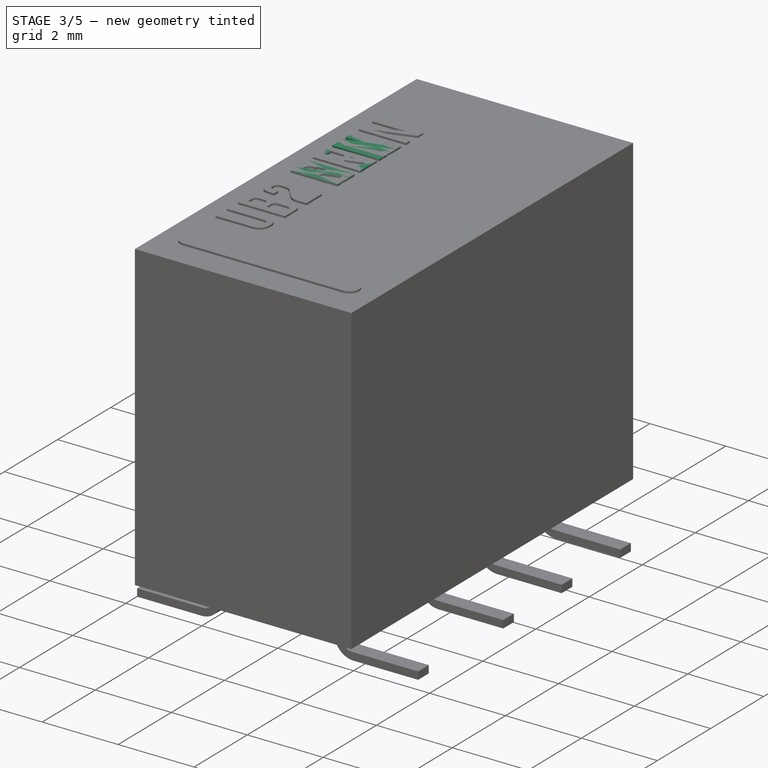
[diagram: stage 3 of 5 — iso view after this stage's code; geometry added in this stage tinted green]
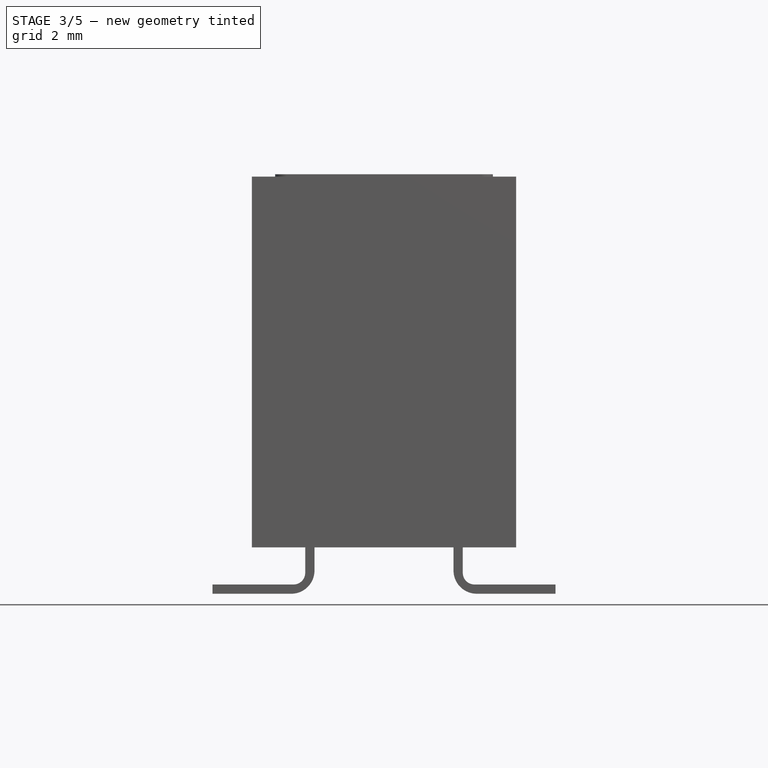
[diagram: stage 3 of 5 — front view after this stage's code; geometry added in this stage tinted green]
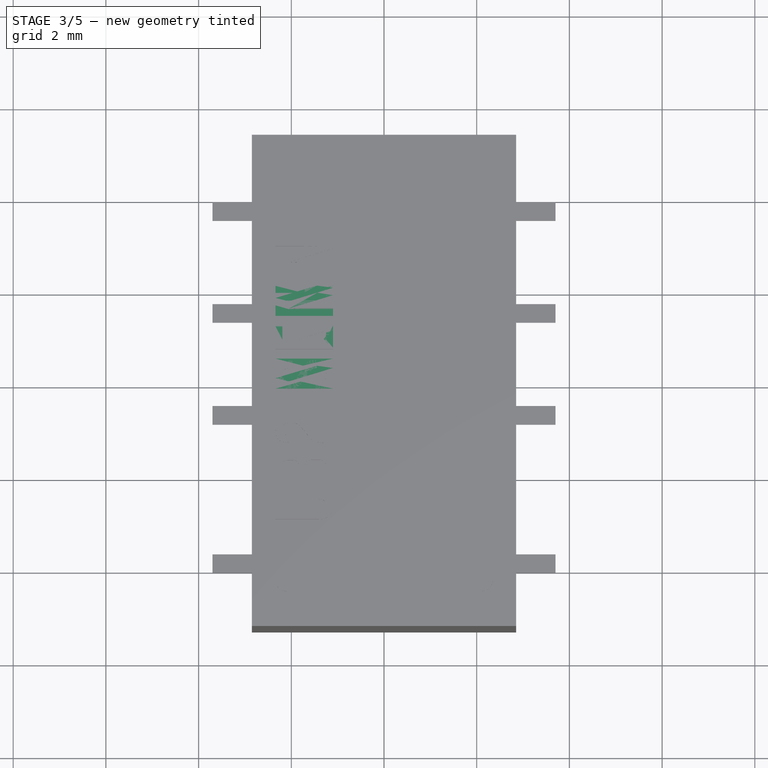
[diagram: stage 3 of 5 — top view after this stage's code; geometry added in this stage tinted green]
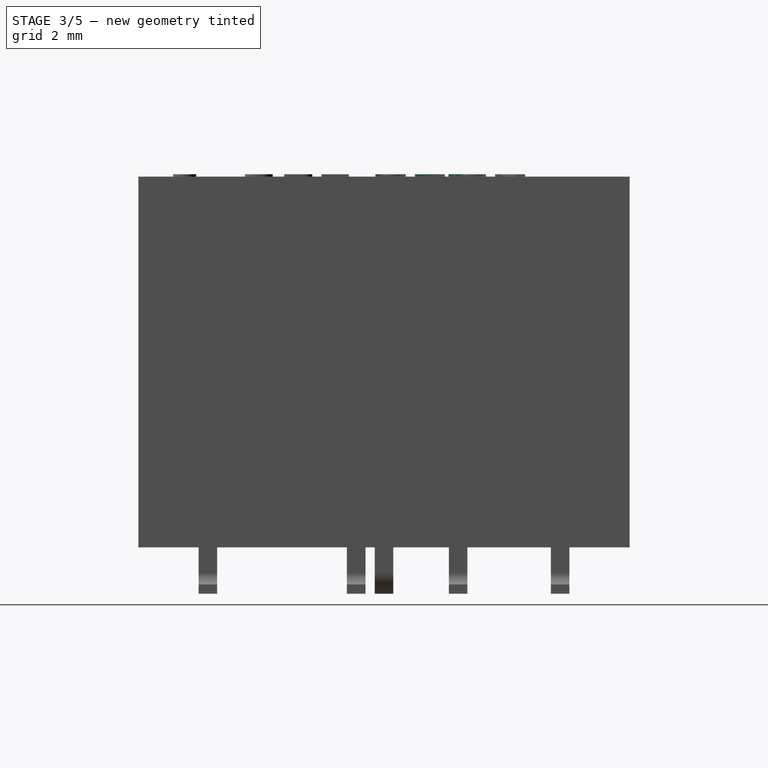
[diagram: stage 3 of 5 — right view after this stage's code; geometry added in this stage tinted green]
FEATURE [PartDesign::Body] Body006  label="UB2-NE_Body"
  Group = -> [Sketch015,Pad009,Sketch013,Pocket004,Sketch014,Pocket005,Sketch012,Pad010,Sketch016,Pad013,ShapeString001,Pad012]
  Origin = -> Origin009
  Tip = -> Pad012
FEATURE [App::Part] Part001  label="UB2-NE"
  Group = -> [Body006,Body009,Body008,Body011,Body007,Body010,Array002,Array003,Fusion001]
  Origin = -> Origin010
FEATURE [Sketcher::SketchObject] Sketch021
  MapMode = 5
  Support = -> [XY_Plane018]
  sketch-geometry (4):
    g0: LineSegment StartX=2.85 StartY=-5.3 StartZ=0 EndX=-2.85 EndY=-5.3 EndZ=0
    g1: LineSegment StartX=-2.85 StartY=-5.3 StartZ=0 EndX=-2.85 EndY=5.3 EndZ=0
    g2: LineSegment StartX=-2.85 StartY=5.3 StartZ=0 EndX=2.85 EndY=5.3 EndZ=0
    g3: LineSegment StartX=2.85 StartY=5.3 StartZ=0 EndX=2.85 EndY=-5.3 EndZ=0
  constraints (10):
    c: Coincident(g0,g1)
    c: Coincident(g1,g2)
    c: Coincident(g2,g3)
    c: Coincident(g3,g0)
    c: Horizontal(g0)
    c: Vertical(g1)
    c: Symmetric(g1,g2,g-2)
    c: Symmetric(g2,g0,g-1)
    c: DistanceX(g2,g2) = 5.7
    c: DistanceY(g3,g3) = 10.6
FEATURE [PartDesign::Pad] Pad014  label="MainPad002"
  Length = 9
  Length2 = 100
  Profile = -> Sketch021
  Type = 0
FEATURE [Sketcher::SketchObject] Sketch019
  ExternalGeometry = -> [Pad014]
  MapMode = 5
  Placement = pos=(-2.85,0,0) rot=(0.57735,-0.57735,-0.57735;2.0944rad)
  Support = -> [Pad014]
  sketch-geometry (4):
    g0: LineSegment StartX=-5.3 StartY=0 StartZ=0 EndX=5.3 EndY=0 EndZ=0
    g1: LineSegment StartX=5.3 StartY=0 StartZ=0 EndX=5.3 EndY=1 EndZ=0
    g2: LineSegment StartX=5.3 StartY=1 StartZ=0 EndX=-5.3 EndY=1 EndZ=0
    g3: LineSegment StartX=-5.3 StartY=1 StartZ=0 EndX=-5.3 EndY=0 EndZ=0
  constraints (11):
    c: Coincident(g0,g1)
    c: Coincident(g1,g2)
    c: Coincident(g2,g3)
    c: Coincident(g3,g0)
    c: Horizontal(g0)
    c: Horizontal(g2)
    c: Vertical(g1)
    c: Vertical(g3)
    c: Coincident(g0,g-3)
    c: PointOnObject(g1,g-4)
    c: DistanceY(g1,g1) = 1
FEATURE [PartDesign::Pocket] Pocket006  label="BottomPocket004"
  BaseFeature = -> Pad014
  Length = 5
  Length2 = 100
  Profile = -> Sketch019
  Type = 1
FEATURE [Sketcher::SketchObject] Sketch020
  ExternalGeometry = -> [Pocket006]
  MapMode = 5
  Placement = pos=(0,0,1) rot=(1,0,0;3.14159rad)
  Support = -> [Pocket006]
  sketch-geometry (4):
    g0: LineSegment StartX=-2.65 StartY=5.1 StartZ=0 EndX=2.65 EndY=5.1 EndZ=0
    g1: LineSegment StartX=2.65 StartY=5.1 StartZ=0 EndX=2.65 EndY=-5.1 EndZ=0
    g2: LineSegment StartX=2.65 StartY=-5.1 StartZ=0 EndX=-2.65 EndY=-5.1 EndZ=0
    g3: LineSegment StartX=-2.65 StartY=-5.1 StartZ=0 EndX=-2.65 EndY=5.1 EndZ=0
  constraints (10):
    c: Coincident(g0,g1)
    c: Coincident(g1,g2)
    c: Coincident(g2,g3)
    c: Coincident(g3,g0)
    c: Horizontal(g2)
    c: Vertical(g3)
    c: Symmetric(g0,g0,g-2)
    c: Symmetric(g0,g1,g-1)
    c: DistanceX(g0,g-3) = 0.2
    c: DistanceY(g0,g-3) = 0.2
FEATURE [PartDesign::Pocket] Pocket007  label="BottomPocket005"
  BaseFeature = -> Pocket006
  Length = 0.1
  Length2 = 100
  Profile = -> Sketch020
  Type = 0
FEATURE [Sketcher::SketchObject] Sketch018
  MapMode = 5
  Placement = pos=(0,0,1.1) rot=(1,0,0;3.14159rad)
  Support = -> [Pocket007]
  sketch-geometry (8):
    g0: LineSegment StartX=-1.45778 StartY=4.66711 StartZ=0 EndX=1.45778 EndY=4.66711 EndZ=0
    g1: LineSegment StartX=2.07753 StartY=4.04736 StartZ=0 EndX=2.07753 EndY=-4.04736 EndZ=0
    g2: LineSegment StartX=1.45778 StartY=-4.66711 StartZ=0 EndX=-1.45778 EndY=-4.66711 EndZ=0
    g3: LineSegment StartX=-2.07753 StartY=-4.04736 StartZ=0 EndX=-2.07753 EndY=4.04736 EndZ=0
    g4: ArcOfCircle CenterX=-1.45778 CenterY=4.04736 CenterZ=0 NormalX=0 NormalY=0 NormalZ=1 AngleXU=0 Radius=0.619749 StartAngle=1.5708 EndAngle=3.14159
    g5: ArcOfCircle CenterX=1.45778 CenterY=4.04736 CenterZ=0 NormalX=0 NormalY=0 NormalZ=1 AngleXU=0 Radius=0.619749 StartAngle=3e-16 EndAngle=1.5708
    g6: ArcOfCircle CenterX=1.45778 CenterY=-4.04736 CenterZ=0 NormalX=0 NormalY=0 NormalZ=1 AngleXU=0 Radius=0.619749 StartAngle=4.71239 EndAngle=6.28319
    g7: ArcOfCircle CenterX=-1.45778 CenterY=-4.04736 CenterZ=0 NormalX=0 NormalY=0 NormalZ=1 AngleXU=0 Radius=0.619749 StartAngle=3.14159 EndAngle=4.71239
  constraints (15):
    c: Horizontal(g0)
    c: Horizontal(g2)
    c: Vertical(g1)
    c: Vertical(g3)
    c: Tangent(g0,g4) = 1.5708
    c: Tangent(g3,g4) = 1.5708
    c: Tangent(g0,g5) = 1.5708
    c: Tangent(g1,g5) = 1.5708
    c: Tangent(g1,g6) = 1.5708
    c: Tangent(g2,g6) = 1.5708
    c: Tangent(g2,g7) = 1.5708
    c: Tangent(g3,g7) = 1.5708
    c: Equal(g7,g6)
    c: Symmetric(g3,g1,g-2)
    c: Symmetric(g0,g2,g-1)
FEATURE [PartDesign::Pad] Pad015  label="BottomPad002"
  BaseFeature = -> Pocket007
  Length = 0.05
  Length2 = 100
  Profile = -> Sketch018
  Type = 0
FEATURE [Sketcher::SketchObject] Sketch022
  ExternalGeometry = -> [Pad015]
  MapMode = 5
  Placement = pos=(0,0,9) rot=(0,0,1;0rad)
  Support = -> [Pad015]
  sketch-geometry (4):
    g0: ArcOfCircle CenterX=-2.1 CenterY=-4.3 CenterZ=0 NormalX=0 NormalY=0 NormalZ=1 AngleXU=0 Radius=0.25 StartAngle=1.5708 EndAngle=4.71239
    g1: ArcOfCircle CenterX=2.1 CenterY=-4.3 CenterZ=0 NormalX=0 NormalY=0 NormalZ=1 AngleXU=0 Radius=0.25 StartAngle=4.71239 EndAngle=7.85398
    g2: LineSegment StartX=-2.1 StartY=-4.55 StartZ=0 EndX=2.1 EndY=-4.55 EndZ=0
    g3: LineSegment StartX=-2.1 StartY=-4.05 StartZ=0 EndX=2.1 EndY=-4.05 EndZ=0
  constraints (9):
    c: Tangent(g0,g3) = 1.5708
    c: Tangent(g0,g2) = -1.5708
    c: Tangent(g2,g1) = -1.5708
    c: Tangent(g3,g1) = 1.5708
    c: Horizontal(g2)
    c: Symmetric(g1,g0,g-2)
    c: DistanceY(g1,g1) = 0.5
    c: DistanceY(g-3,g0) = 1
    c: DistanceX(g-3,g0) = 0.75
FEATURE [PartDesign::Pad] Pad018  label="CoilMarkingPad002"
  BaseFeature = -> Pad015
  Length = 0.05
  Length2 = 100
  Profile = -> Sketch022
  Type = 0
FEATURE [Sketcher::SketchObject] Sketch023
  MapMode = 5
  Placement = pos=(0,0,0) rot=(1,0,0;1.5708rad)
  Support = -> [XZ_Plane016]
  sketch-geometry (7):
    g0: LineSegment StartX=-1.7 StartY=1 StartZ=0 EndX=-1.7 EndY=0.2 EndZ=0
    g1: LineSegment StartX=-1.7 StartY=0.2 StartZ=0 EndX=-2.85 EndY=0.2 EndZ=0
    g2: LineSegment StartX=-2.85 StartY=0.2 StartZ=0 EndX=-2.85 EndY=0 EndZ=0
    g3: LineSegment StartX=-2.85 StartY=0 StartZ=0 EndX=-1.5 EndY=0 EndZ=0
    g4: LineSegment StartX=-1.5 StartY=0 StartZ=0 EndX=-1.5 EndY=1 EndZ=0
    g5: LineSegment StartX=-1.5 StartY=1 StartZ=0 EndX=-1.7 EndY=1 EndZ=0
    g6: GeomPoint X=-1.6 Y=1 Z=0
  constraints (19):
    c: Vertical(g0)
    c: Coincident(g0,g1)
    c: Horizontal(g1)
    c: Coincident(g1,g2)
    c: PointOnObject(g2,g-1)
    c: Vertical(g2)
    c: Coincident(g2,g3)
    c: Horizontal(g3)
    c: Coincident(g3,g4)
    c: Vertical(g4)
    c: Coincident(g4,g5)
    c: Coincident(g5,g0)
    c: Horizontal(g5)
    c: DistanceY(g2,g2) = 0.2
    c: Symmetric(g0,g4,g6)
    c: DistanceX(g6,g-1) = 1.6
    c: Equal(g5,g2)
    c: DistanceY(g4,g4) = 1
    c: DistanceX(g2,g-1) = 2.85
FEATURE [PartDesign::Pad] Pad016
  Length = 0.4
  Length2 = 100
  Midplane = true
  Placement = pos=(0,0,0) rot=(1,0,0;1.5708rad)
  Profile = -> Sketch023
  Type = 0
FEATURE [PartDesign::Fillet] Fillet004
  Base = -> Pad016 [Edge2]
  BaseFeature = -> Pad016
  Placement = pos=(0,0,0) rot=(1,0,0;1.5708rad)
  Radius = 0.25
FEATURE [PartDesign::Fillet] Fillet005
  Base = -> Fillet004 [Edge20]
  BaseFeature = -> Fillet004
  Placement = pos=(0,0,0) rot=(1,0,0;1.5708rad)
  Radius = 0.5
FEATURE [PartDesign::FeatureBase] Clone011
  BaseFeature = -> Body015
FEATURE [Part::Part2DObjectPython] ShapeString002  # Draft 2D object (typed FeaturePython)
  AttachmentOffset = pos=(-1,-1,0) rot=(0,0,-1;1.5708rad)
  FontFile = <userpath>/Desktop/GitHub/freecad-projects/00-fonts/coolvetica condensed rg.ttf
  MapMode = 6
  Placement = pos=(-1.1,-3.05,9) rot=(0,0,1;1.5708rad)
  Size = 0.75
  String = UB2 NUN
  Support = -> [Pad018]
  Tracking = 0.125
FEATURE [PartDesign::Pad] Pad017  label="ShapeStringPad002"
  BaseFeature = -> Pad018
  Length = 0.05
  Length2 = 100
  Profile = -> ShapeString002
  Refine = true
  Type = 0
FEATURE [PartDesign::Body] Body020
  Group = -> [Sketch027,Pad021,Fillet006,Fillet007]
  Origin = -> Origin023
  Tip = -> Fillet007
FEATURE [PartDesign::FeatureBase] Clone013
  BaseFeature = -> Body020
FEATURE [PartDesign::FeatureBase] Clone014
  BaseFeature = -> Body020
FEATURE [PartDesign::Body] Body018
  BaseFeature = -> Body020
  Group = -> [Clone014]
  Origin = -> Origin022
  Placement = pos=(0,-3.8,0) rot=(0,0,1;0rad)
  Tip = -> Clone014
FEATURE [PartDesign::FeatureBase] Clone012
  BaseFeature = -> Body018
  Placement = pos=(0,-3.8,0) rot=(0,0,1;0rad)
FEATURE [PartDesign::Body] Body019
  BaseFeature = -> Body018
  Group = -> [Clone012]
  Origin = -> Origin027
  Placement = pos=(0,3.2,0) rot=(0,0,1;0rad)
  Tip = -> Clone012
FEATURE [Part::FeaturePython] Array007  # Draft array (typed FeaturePython)
  Angle = 360
  ArrayType = 0
  Axis = (0,0,1)
  Base = -> Body019
  Center = (0,0,0)
  Fuse = false
  IntervalAxis = (0,0,0)
  IntervalX = (1,0,0)
  IntervalY = (0,2.2,0)
  IntervalZ = (0,0,1)
  NumberPolar = 1
  NumberX = 1
  NumberY = 3
  NumberZ = 1
FEATURE [PartDesign::Body] Body023
  BaseFeature = -> Body020
  Group = -> [Clone013]
  Origin = -> Origin024
  Placement = pos=(0,-3.8,0) rot=(0,0,1;3.14159rad)
  Tip = -> Clone013
FEATURE [PartDesign::FeatureBase] Clone015
  BaseFeature = -> Body023
  Placement = pos=(0,-3.8,0) rot=(0,0,1;3.14159rad)
FEATURE [PartDesign::Body] Body022
  Group = -> [Clone015]
  Origin = -> Origin021
  Placement = pos=(0,3.2,0) rot=(0,0,1;0rad)
  Tip = -> Clone015
FEATURE [Part::FeaturePython] Array006  # Draft array (typed FeaturePython)
  Angle = 360
  ArrayType = 0
  Axis = (0,0,1)
  Base = -> Body022
  Center = (0,0,0)
  Fuse = false
  IntervalAxis = (0,0,0)
  IntervalX = (1,0,0)
  IntervalY = (0,2.2,0)
  IntervalZ = (0,0,1)
  NumberPolar = 1
  NumberX = 1
  NumberY = 3
  NumberZ = 1
FEATURE [Part::MultiFuse] Fusion003  label="UB2-NEN_Pins"
  Shapes = -> [Body023,Array006,Array007,Body018]
FEATURE [Sketcher::SketchObject] Sketch029
  MapMode = 5
  Placement = pos=(0,0,1.1) rot=(1,0,0;3.14159rad)
  Support = -> [Pocket009]
  sketch-geometry (8):
    g0: LineSegment StartX=-1.45778 StartY=4.66711 StartZ=0 EndX=1.45778 EndY=4.66711 EndZ=0
    g1: LineSegment StartX=2.07753 StartY=4.04736 StartZ=0 EndX=2.07753 EndY=-4.04736 EndZ=0
    g2: LineSegment StartX=1.45778 StartY=-4.66711 StartZ=0 EndX=-1.45778 EndY=-4.66711 EndZ=0
    g3: LineSegment StartX=-2.07753 StartY=-4.04736 StartZ=0 EndX=-2.07753 EndY=4.04736 EndZ=0
    g4: ArcOfCircle CenterX=-1.45778 CenterY=4.04736 CenterZ=0 NormalX=0 NormalY=0 NormalZ=1 AngleXU=0 Radius=0.619749 StartAngle=1.5708 EndAngle=3.14159
    g5: ArcOfCircle CenterX=1.45778 CenterY=4.04736 CenterZ=0 NormalX=0 NormalY=0 NormalZ=1 AngleXU=0 Radius=0.619749 StartAngle=3e-16 EndAngle=1.5708
    g6: ArcOfCircle CenterX=1.45778 CenterY=-4.04736 CenterZ=0 NormalX=0 NormalY=0 NormalZ=1 AngleXU=0 Radius=0.619749 StartAngle=4.71239 EndAngle=6.28319
    g7: ArcOfCircle CenterX=-1.45778 CenterY=-4.04736 CenterZ=0 NormalX=0 NormalY=0 NormalZ=1 AngleXU=0 Radius=0.619749 StartAngle=3.14159 EndAngle=4.71239
  constraints (15):
    c: Horizontal(g0)
    c: Horizontal(g2)
    c: Vertical(g1)
    c: Vertical(g3)
    c: Tangent(g0,g4) = 1.5708
    c: Tangent(g3,g4) = 1.5708
    c: Tangent(g0,g5) = 1.5708
    c: Tangent(g1,g5) = 1.5708
    c: Tangent(g1,g6) = 1.5708
    c: Tangent(g2,g6) = 1.5708
    c: Tangent(g2,g7) = 1.5708
    c: Tangent(g3,g7) = 1.5708
    c: Equal(g7,g6)
    c: Symmetric(g3,g1,g-2)
    c: Symmetric(g0,g2,g-1)
FEATURE [PartDesign::Pad] Pad020  label="BottomPad003"
  BaseFeature = -> Pocket009
  Length = 0.05
  Length2 = 100
  Profile = -> Sketch029
  Type = 0
FEATURE [Sketcher::SketchObject] Sketch025
  ExternalGeometry = -> [Pad020]
  MapMode = 5
  Placement = pos=(0,0,9) rot=(0,0,1;0rad)
  Support = -> [Pad020]
  sketch-geometry (4):
    g0: ArcOfCircle CenterX=-2.1 CenterY=-4.3 CenterZ=0 NormalX=0 NormalY=0 NormalZ=1 AngleXU=0 Radius=0.25 StartAngle=1.5708 EndAngle=4.71239
    g1: ArcOfCircle CenterX=2.1 CenterY=-4.3 CenterZ=0 NormalX=0 NormalY=0 NormalZ=1 AngleXU=0 Radius=0.25 StartAngle=4.71239 EndAngle=7.85398
    g2: LineSegment StartX=-2.1 StartY=-4.55 StartZ=0 EndX=2.1 EndY=-4.55 EndZ=0
    g3: LineSegment StartX=-2.1 StartY=-4.05 StartZ=0 EndX=2.1 EndY=-4.05 EndZ=0
  constraints (9):
    c: Tangent(g0,g3) = 1.5708
    c: Tangent(g0,g2) = -1.5708
    c: Tangent(g2,g1) = -1.5708
    c: Tangent(g3,g1) = 1.5708
    c: Horizontal(g2)
    c: Symmetric(g1,g0,g-2)
    c: DistanceY(g1,g1) = 0.5
    c: DistanceY(g-3,g0) = 1
    c: DistanceX(g-3,g0) = 0.75
FEATURE [PartDesign::Pad] Pad023  label="CoilMarkingPad003"
  BaseFeature = -> Pad020
  Length = 0.05
  Length2 = 100
  Profile = -> Sketch025
  Type = 0
FEATURE [Part::Part2DObjectPython] ShapeString003  # Draft 2D object (typed FeaturePython)
  AttachmentOffset = pos=(-1,-1,0) rot=(0,0,-1;1.5708rad)
  FontFile = <userpath>/Desktop/GitHub/freecad-projects/00-fonts/coolvetica condensed rg.ttf
  MapMode = 6
  Placement = pos=(-1.1,-3.05,9) rot=(0,0,1;1.5708rad)
  Size = 0.75
  String = UB2 NEN
  Support = -> [Pad023]
  Tracking = 0.125
FEATURE [PartDesign::Pad] Pad022  label="ShapeStringPad003"
  BaseFeature = -> Pad023
  Length = 0.05
  Length2 = 100
  Profile = -> ShapeString003
  Refine = true
  Type = 0
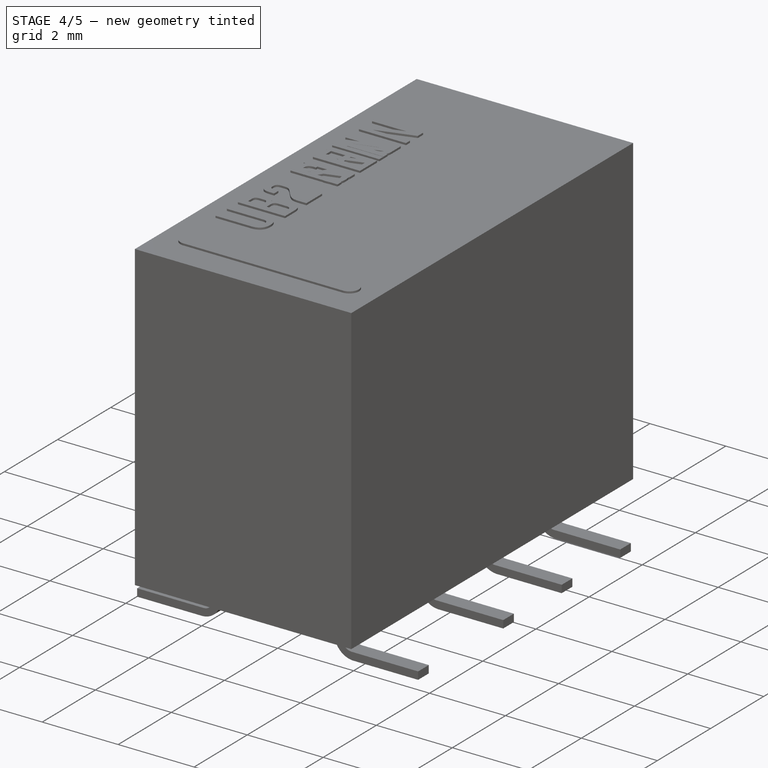
[diagram: stage 4 of 5 — iso view after this stage's code; geometry added in this stage tinted green]
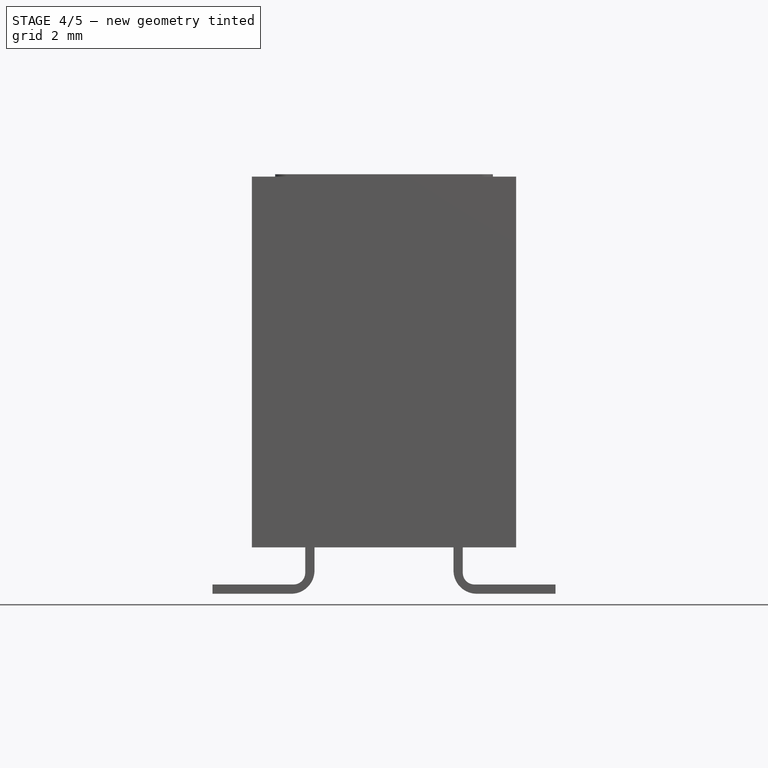
[diagram: stage 4 of 5 — front view after this stage's code; geometry added in this stage tinted green]
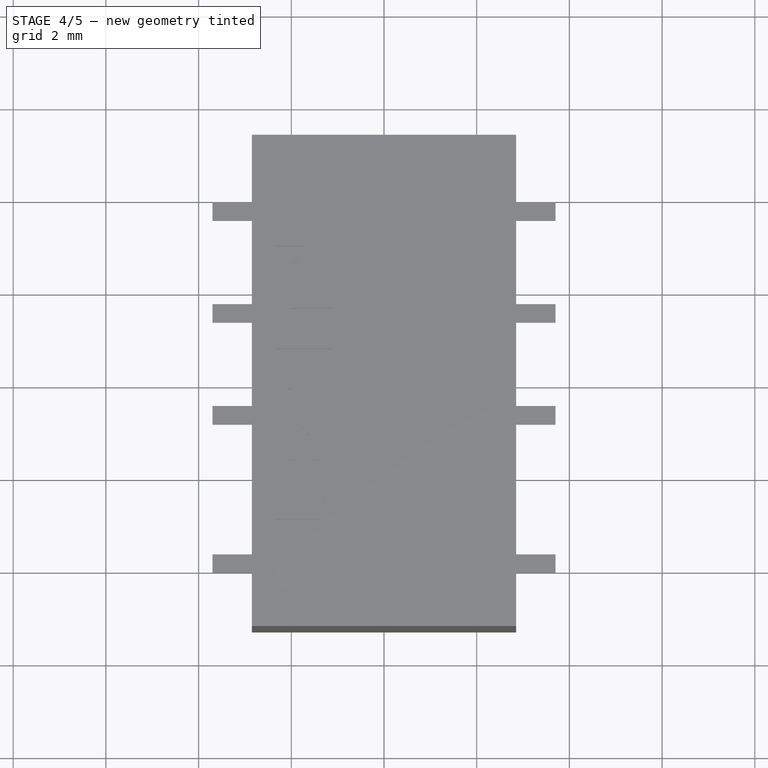
[diagram: stage 4 of 5 — top view after this stage's code; geometry added in this stage tinted green]
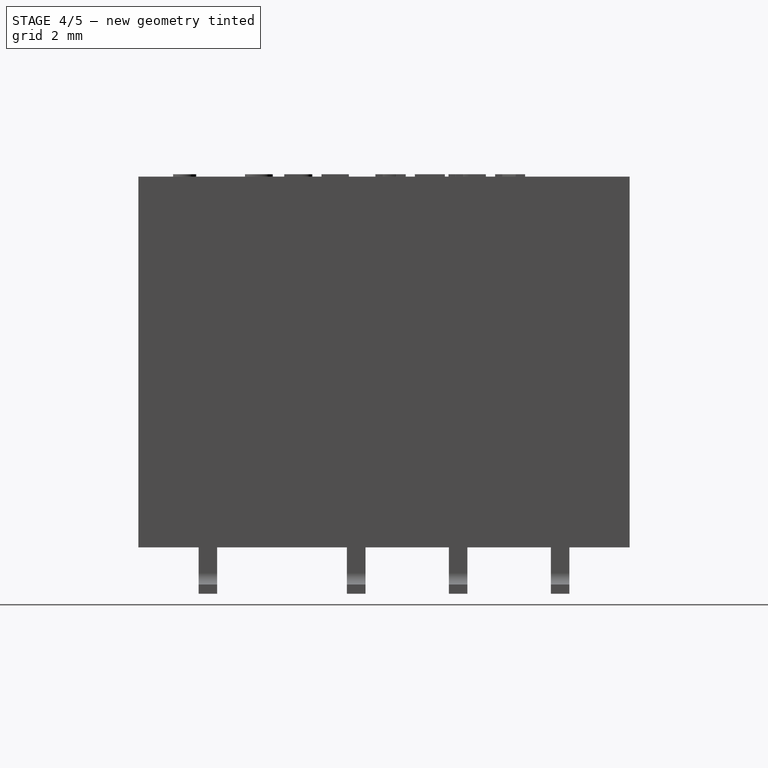
[diagram: stage 4 of 5 — right view after this stage's code; geometry added in this stage tinted green]
FEATURE [App::Part] Part  label="UB2-NU"
  Group = -> [Body,Body001,Body002,Body003,Body004,Body005,Array,Array001,Fusion]
  Origin = -> Origin001
FEATURE [Sketcher::SketchObject] Sketch015
  MapMode = 5
  Support = -> [XY_Plane011]
  sketch-geometry (4):
    g0: LineSegment StartX=2.85 StartY=-5.3 StartZ=0 EndX=-2.85 EndY=-5.3 EndZ=0
    g1: LineSegment StartX=-2.85 StartY=-5.3 StartZ=0 EndX=-2.85 EndY=5.3 EndZ=0
    g2: LineSegment StartX=-2.85 StartY=5.3 StartZ=0 EndX=2.85 EndY=5.3 EndZ=0
    g3: LineSegment StartX=2.85 StartY=5.3 StartZ=0 EndX=2.85 EndY=-5.3 EndZ=0
  constraints (10):
    c: Coincident(g0,g1)
    c: Coincident(g1,g2)
    c: Coincident(g2,g3)
    c: Coincident(g3,g0)
    c: Horizontal(g0)
    c: Vertical(g1)
    c: Symmetric(g1,g2,g-2)
    c: Symmetric(g2,g0,g-1)
    c: DistanceX(g2,g2) = 5.7
    c: DistanceY(g3,g3) = 10.6
FEATURE [PartDesign::Pad] Pad009  label="MainPad001"
  Length = 8.8
  Length2 = 100
  Profile = -> Sketch015
  Type = 0
FEATURE [Sketcher::SketchObject] Sketch013
  ExternalGeometry = -> [Pad009]
  MapMode = 5
  Placement = pos=(-2.85,0,0) rot=(0.57735,-0.57735,-0.57735;2.0944rad)
  Support = -> [Pad009]
  sketch-geometry (4):
    g0: LineSegment StartX=-5.3 StartY=0 StartZ=0 EndX=5.3 EndY=0 EndZ=0
    g1: LineSegment StartX=5.3 StartY=0 StartZ=0 EndX=5.3 EndY=1 EndZ=0
    g2: LineSegment StartX=5.3 StartY=1 StartZ=0 EndX=-5.3 EndY=1 EndZ=0
    g3: LineSegment StartX=-5.3 StartY=1 StartZ=0 EndX=-5.3 EndY=0 EndZ=0
  constraints (11):
    c: Coincident(g0,g1)
    c: Coincident(g1,g2)
    c: Coincident(g2,g3)
    c: Coincident(g3,g0)
    c: Horizontal(g0)
    c: Horizontal(g2)
    c: Vertical(g1)
    c: Vertical(g3)
    c: Coincident(g0,g-3)
    c: PointOnObject(g1,g-4)
    c: DistanceY(g1,g1) = 1
FEATURE [PartDesign::Pocket] Pocket004  label="BottomPocket002"
  BaseFeature = -> Pad009
  Length = 5
  Length2 = 100
  Profile = -> Sketch013
  Type = 1
FEATURE [Sketcher::SketchObject] Sketch014
  ExternalGeometry = -> [Pocket004]
  MapMode = 5
  Placement = pos=(0,0,1) rot=(1,0,0;3.14159rad)
  Support = -> [Pocket004]
  sketch-geometry (4):
    g0: LineSegment StartX=-2.65 StartY=5.1 StartZ=0 EndX=2.65 EndY=5.1 EndZ=0
    g1: LineSegment StartX=2.65 StartY=5.1 StartZ=0 EndX=2.65 EndY=-5.1 EndZ=0
    g2: LineSegment StartX=2.65 StartY=-5.1 StartZ=0 EndX=-2.65 EndY=-5.1 EndZ=0
    g3: LineSegment StartX=-2.65 StartY=-5.1 StartZ=0 EndX=-2.65 EndY=5.1 EndZ=0
  constraints (10):
    c: Coincident(g0,g1)
    c: Coincident(g1,g2)
    c: Coincident(g2,g3)
    c: Coincident(g3,g0)
    c: Horizontal(g2)
    c: Vertical(g3)
    c: Symmetric(g0,g0,g-2)
    c: Symmetric(g0,g1,g-1)
    c: DistanceX(g0,g-3) = 0.2
    c: DistanceY(g0,g-3) = 0.2
FEATURE [PartDesign::Pocket] Pocket005  label="BottomPocket003"
  BaseFeature = -> Pocket004
  Length = 0.1
  Length2 = 100
  Profile = -> Sketch014
  Type = 0
FEATURE [Sketcher::SketchObject] Sketch012
  MapMode = 5
  Placement = pos=(0,0,1.1) rot=(1,0,0;3.14159rad)
  Support = -> [Pocket005]
  sketch-geometry (8):
    g0: LineSegment StartX=-1.45778 StartY=4.66711 StartZ=0 EndX=1.45778 EndY=4.66711 EndZ=0
    g1: LineSegment StartX=2.07753 StartY=4.04736 StartZ=0 EndX=2.07753 EndY=-4.04736 EndZ=0
    g2: LineSegment StartX=1.45778 StartY=-4.66711 StartZ=0 EndX=-1.45778 EndY=-4.66711 EndZ=0
    g3: LineSegment StartX=-2.07753 StartY=-4.04736 StartZ=0 EndX=-2.07753 EndY=4.04736 EndZ=0
    g4: ArcOfCircle CenterX=-1.45778 CenterY=4.04736 CenterZ=0 NormalX=0 NormalY=0 NormalZ=1 AngleXU=0 Radius=0.619749 StartAngle=1.5708 EndAngle=3.14159
    g5: ArcOfCircle CenterX=1.45778 CenterY=4.04736 CenterZ=0 NormalX=0 NormalY=0 NormalZ=1 AngleXU=0 Radius=0.619749 StartAngle=3e-16 EndAngle=1.5708
    g6: ArcOfCircle CenterX=1.45778 CenterY=-4.04736 CenterZ=0 NormalX=0 NormalY=0 NormalZ=1 AngleXU=0 Radius=0.619749 StartAngle=4.71239 EndAngle=6.28319
    g7: ArcOfCircle CenterX=-1.45778 CenterY=-4.04736 CenterZ=0 NormalX=0 NormalY=0 NormalZ=1 AngleXU=0 Radius=0.619749 StartAngle=3.14159 EndAngle=4.71239
  constraints (15):
    c: Horizontal(g0)
    c: Horizontal(g2)
    c: Vertical(g1)
    c: Vertical(g3)
    c: Tangent(g0,g4) = 1.5708
    c: Tangent(g3,g4) = 1.5708
    c: Tangent(g0,g5) = 1.5708
    c: Tangent(g1,g5) = 1.5708
    c: Tangent(g1,g6) = 1.5708
    c: Tangent(g2,g6) = 1.5708
    c: Tangent(g2,g7) = 1.5708
    c: Tangent(g3,g7) = 1.5708
    c: Equal(g7,g6)
    c: Symmetric(g3,g1,g-2)
    c: Symmetric(g0,g2,g-1)
FEATURE [PartDesign::Pad] Pad010  label="BottomPad001"
  BaseFeature = -> Pocket005
  Length = 0.05
  Length2 = 100
  Profile = -> Sketch012
  Type = 0
FEATURE [Sketcher::SketchObject] Sketch016
  ExternalGeometry = -> [Pad010]
  MapMode = 5
  Placement = pos=(0,0,8.8) rot=(0,0,1;0rad)
  Support = -> [Pad010]
  sketch-geometry (4):
    g0: ArcOfCircle CenterX=-2.1 CenterY=-4.3 CenterZ=0 NormalX=0 NormalY=0 NormalZ=1 AngleXU=0 Radius=0.25 StartAngle=1.5708 EndAngle=4.71239
    g1: ArcOfCircle CenterX=2.1 CenterY=-4.3 CenterZ=0 NormalX=0 NormalY=0 NormalZ=1 AngleXU=0 Radius=0.25 StartAngle=4.71239 EndAngle=7.85398
    g2: LineSegment StartX=-2.1 StartY=-4.55 StartZ=0 EndX=2.1 EndY=-4.55 EndZ=0
    g3: LineSegment StartX=-2.1 StartY=-4.05 StartZ=0 EndX=2.1 EndY=-4.05 EndZ=0
  constraints (9):
    c: Tangent(g0,g3) = 1.5708
    c: Tangent(g0,g2) = -1.5708
    c: Tangent(g2,g1) = -1.5708
    c: Tangent(g3,g1) = 1.5708
    c: Horizontal(g2)
    c: Symmetric(g1,g0,g-2)
    c: DistanceY(g1,g1) = 0.5
    c: DistanceY(g-3,g0) = 1
    c: DistanceX(g-3,g0) = 0.75
FEATURE [PartDesign::Pad] Pad013  label="CoilMarkingPad001"
  BaseFeature = -> Pad010
  Length = 0.05
  Length2 = 100
  Profile = -> Sketch016
  Type = 0
FEATURE [Sketcher::SketchObject] Sketch017
  MapMode = 5
  Placement = pos=(0,0,0) rot=(1,0,0;1.5708rad)
  Support = -> [XZ_Plane009]
  sketch-geometry (7):
    g0: LineSegment StartX=-1.7 StartY=1 StartZ=0 EndX=-1.7 EndY=0.2 EndZ=0
    g1: LineSegment StartX=-1.7 StartY=0.2 StartZ=0 EndX=-3.7 EndY=0.2 EndZ=0
    g2: LineSegment StartX=-3.7 StartY=0.2 StartZ=0 EndX=-3.7 EndY=0 EndZ=0
    g3: LineSegment StartX=-3.7 StartY=0 StartZ=0 EndX=-1.5 EndY=0 EndZ=0
    g4: LineSegment StartX=-1.5 StartY=0 StartZ=0 EndX=-1.5 EndY=1 EndZ=0
    g5: LineSegment StartX=-1.5 StartY=1 StartZ=0 EndX=-1.7 EndY=1 EndZ=0
    g6: GeomPoint X=-1.6 Y=1 Z=0
  constraints (19):
    c: Vertical(g0)
    c: Coincident(g0,g1)
    c: Horizontal(g1)
    c: Coincident(g1,g2)
    c: PointOnObject(g2,g-1)
    c: Vertical(g2)
    c: Coincident(g2,g3)
    c: Horizontal(g3)
    c: Coincident(g3,g4)
    c: Vertical(g4)
    c: Coincident(g4,g5)
    c: Coincident(g5,g0)
    c: Horizontal(g5)
    c: DistanceY(g2,g2) = 0.2
    c: Symmetric(g0,g4,g6)
    c: DistanceX(g6,g-1) = 1.6
    c: Equal(g5,g2)
    c: DistanceY(g4,g4) = 1
    c: DistanceX(g2,g-1) = 3.7
FEATURE [PartDesign::Pad] Pad011
  Length = 0.4
  Length2 = 100
  Midplane = true
  Placement = pos=(0,0,0) rot=(1,0,0;1.5708rad)
  Profile = -> Sketch017
  Type = 0
FEATURE [PartDesign::Fillet] Fillet002
  Base = -> Pad011 [Edge2]
  BaseFeature = -> Pad011
  Placement = pos=(0,0,0) rot=(1,0,0;1.5708rad)
  Radius = 0.25
FEATURE [PartDesign::Fillet] Fillet003
  Base = -> Fillet002 [Edge20]
  BaseFeature = -> Fillet002
  Placement = pos=(0,0,0) rot=(1,0,0;1.5708rad)
  Radius = 0.5
FEATURE [PartDesign::Body] Body009
  Group = -> [Sketch017,Pad011,Fillet002,Fillet003]
  Origin = -> Origin011
  Tip = -> Fillet003
FEATURE [PartDesign::FeatureBase] Clone006
  BaseFeature = -> Body009
FEATURE [PartDesign::Body] Body008
  BaseFeature = -> Body009
  Group = -> [Clone006]
  Origin = -> Origin012
  Placement = pos=(0,-3.8,0) rot=(0,0,1;3.14159rad)
  Tip = -> Clone006
FEATURE [PartDesign::FeatureBase] Clone005
  BaseFeature = -> Body008
  Placement = pos=(0,-3.8,0) rot=(0,0,1;3.14159rad)
FEATURE [PartDesign::FeatureBase] Clone007
  BaseFeature = -> Body009
FEATURE [PartDesign::Body] Body011
  BaseFeature = -> Body009
  Group = -> [Clone007]
  Origin = -> Origin013
  Placement = pos=(0,-3.8,0) rot=(0,0,1;0rad)
  Tip = -> Clone007
FEATURE [PartDesign::FeatureBase] Clone004
  BaseFeature = -> Body011
  Placement = pos=(0,-3.8,0) rot=(0,0,1;0rad)
FEATURE [Part::Part2DObjectPython] ShapeString001  # Draft 2D object (typed FeaturePython)
  AttachmentOffset = pos=(-1,-1,0) rot=(0,0,-1;1.5708rad)
  FontFile = <userpath>/Desktop/GitHub/freecad-projects/00-fonts/coolvetica condensed rg.ttf
  MapMode = 6
  Placement = pos=(-1.1,-3.05,8.8) rot=(0,0,1;1.5708rad)
  Size = 0.75
  String = UB2 NE
  Support = -> [Pad013]
  Tracking = 0.125
FEATURE [PartDesign::Pad] Pad012  label="ShapeStringPad001"
  BaseFeature = -> Pad013
  Length = 0.05
  Length2 = 100
  Profile = -> ShapeString001
  Refine = true
  Type = 0
FEATURE [PartDesign::Body] Body015
  Group = -> [Sketch023,Pad016,Fillet004,Fillet005]
  Origin = -> Origin018
  Tip = -> Fillet005
FEATURE [PartDesign::FeatureBase] Clone010
  BaseFeature = -> Body015
FEATURE [PartDesign::Body] Body014
  BaseFeature = -> Body015
  Group = -> [Clone010]
  Origin = -> Origin019
  Placement = pos=(0,-3.8,0) rot=(0,0,1;3.14159rad)
  Tip = -> Clone010
FEATURE [PartDesign::FeatureBase] Clone009
  BaseFeature = -> Body014
  Placement = pos=(0,-3.8,0) rot=(0,0,1;3.14159rad)
FEATURE [PartDesign::Body] Body013
  Group = -> [Clone009]
  Origin = -> Origin015
  Placement = pos=(0,3.2,0) rot=(0,0,1;0rad)
  Tip = -> Clone009
FEATURE [Part::FeaturePython] Array004  # Draft array (typed FeaturePython)
  Angle = 360
  ArrayType = 0
  Axis = (0,0,1)
  Base = -> Body013
  Center = (0,0,0)
  Fuse = false
  IntervalAxis = (0,0,0)
  IntervalX = (1,0,0)
  IntervalY = (0,2.2,0)
  IntervalZ = (0,0,1)
  NumberPolar = 1
  NumberX = 1
  NumberY = 3
  NumberZ = 1
FEATURE [PartDesign::Body] Body017
  BaseFeature = -> Body015
  Group = -> [Clone011]
  Origin = -> Origin020
  Placement = pos=(0,-3.8,0) rot=(0,0,1;0rad)
  Tip = -> Clone011
FEATURE [PartDesign::FeatureBase] Clone008
  BaseFeature = -> Body017
  Placement = pos=(0,-3.8,0) rot=(0,0,1;0rad)
FEATURE [PartDesign::Body] Body016
  Group = -> [Clone008]
  Origin = -> Origin014
  Placement = pos=(0,3.2,0) rot=(0,0,1;0rad)
  Tip = -> Clone008
FEATURE [Part::FeaturePython] Array005  # Draft array (typed FeaturePython)
  Angle = 360
  ArrayType = 0
  Axis = (0,0,1)
  Base = -> Body016
  Center = (0,0,0)
  Fuse = false
  IntervalAxis = (0,0,0)
  IntervalX = (1,0,0)
  IntervalY = (0,2.2,0)
  IntervalZ = (0,0,1)
  NumberPolar = 1
  NumberX = 1
  NumberY = 3
  NumberZ = 1
FEATURE [Part::MultiFuse] Fusion002  label="UB2-NUN_Pins"
  Shapes = -> [Body014,Array004,Array005,Body017]
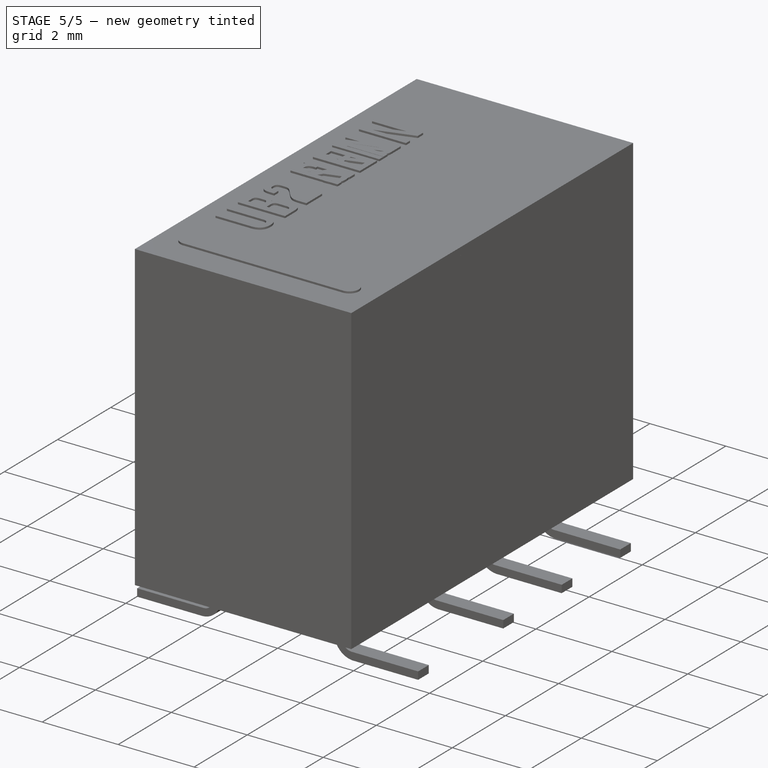
[diagram: stage 5 of 5 — iso view after this stage's code; geometry added in this stage tinted green]
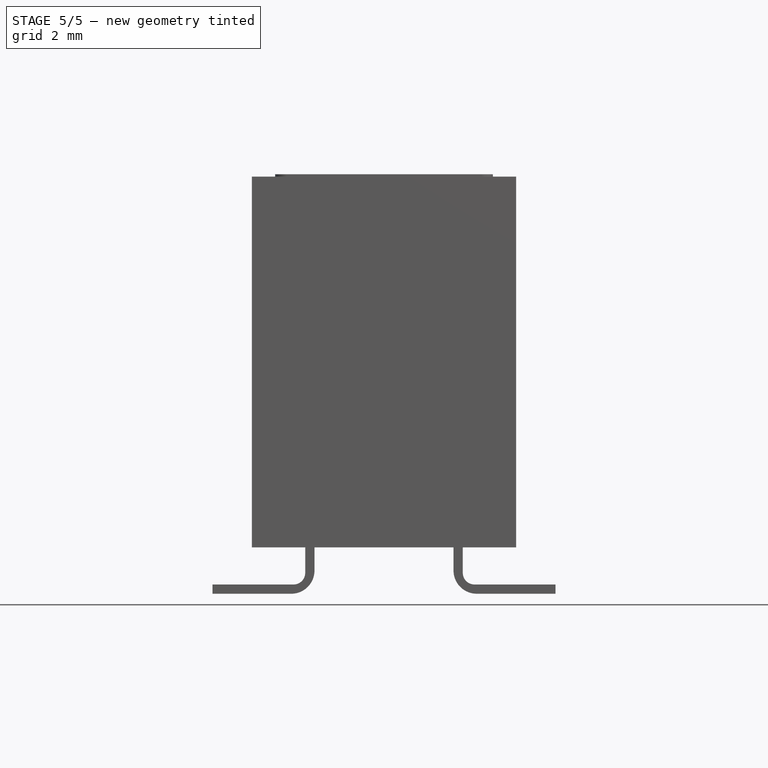
[diagram: stage 5 of 5 — front view after this stage's code; geometry added in this stage tinted green]
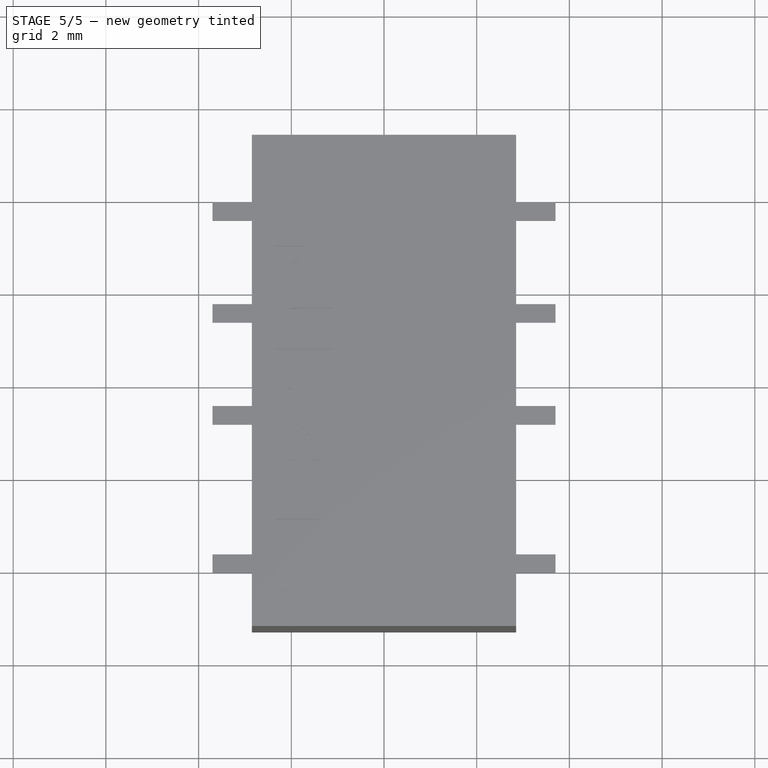
[diagram: stage 5 of 5 — top view after this stage's code; geometry added in this stage tinted green]
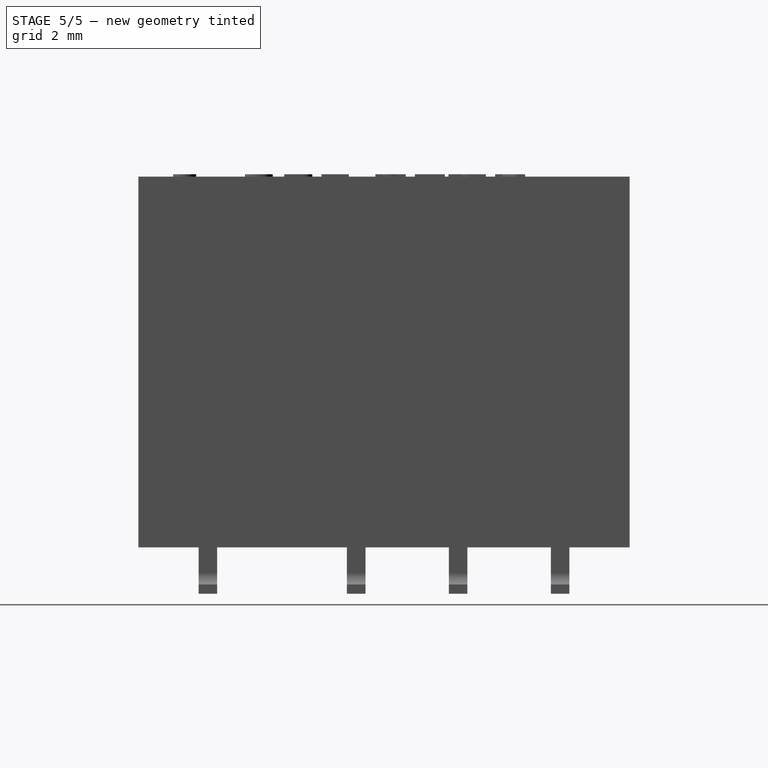
[diagram: stage 5 of 5 — right view after this stage's code; geometry added in this stage tinted green]
FEATURE [Sketcher::SketchObject] Sketch
  MapMode = 5
  Support = -> [XY_Plane]
  sketch-geometry (4):
    g0: LineSegment StartX=2.85 StartY=-5.3 StartZ=0 EndX=-2.85 EndY=-5.3 EndZ=0
    g1: LineSegment StartX=-2.85 StartY=-5.3 StartZ=0 EndX=-2.85 EndY=5.3 EndZ=0
    g2: LineSegment StartX=-2.85 StartY=5.3 StartZ=0 EndX=2.85 EndY=5.3 EndZ=0
    g3: LineSegment StartX=2.85 StartY=5.3 StartZ=0 EndX=2.85 EndY=-5.3 EndZ=0
  constraints (10):
    c: Coincident(g0,g1)
    c: Coincident(g1,g2)
    c: Coincident(g2,g3)
    c: Coincident(g3,g0)
    c: Horizontal(g0)
    c: Vertical(g1)
    c: Symmetric(g1,g2,g-2)
    c: Symmetric(g2,g0,g-1)
    c: DistanceX(g2,g2) = 5.7
    c: DistanceY(g3,g3) = 10.6
FEATURE [PartDesign::Pad] Pad  label="MainPad"
  Length = 8.8
  Length2 = 100
  Profile = -> Sketch
  Type = 0
FEATURE [Sketcher::SketchObject] Sketch003
  ExternalGeometry = -> [Pad]
  MapMode = 5
  Placement = pos=(-2.85,0,0) rot=(0.57735,-0.57735,-0.57735;2.0944rad)
  Support = -> [Pad]
  sketch-geometry (4):
    g0: LineSegment StartX=-5.3 StartY=0 StartZ=0 EndX=5.3 EndY=0 EndZ=0
    g1: LineSegment StartX=5.3 StartY=0 StartZ=0 EndX=5.3 EndY=1 EndZ=0
    g2: LineSegment StartX=5.3 StartY=1 StartZ=0 EndX=-5.3 EndY=1 EndZ=0
    g3: LineSegment StartX=-5.3 StartY=1 StartZ=0 EndX=-5.3 EndY=0 EndZ=0
  constraints (11):
    c: Coincident(g0,g1)
    c: Coincident(g1,g2)
    c: Coincident(g2,g3)
    c: Coincident(g3,g0)
    c: Horizontal(g0)
    c: Horizontal(g2)
    c: Vertical(g1)
    c: Vertical(g3)
    c: Coincident(g0,g-3)
    c: PointOnObject(g1,g-4)
    c: DistanceY(g1,g1) = 1
FEATURE [PartDesign::Pocket] Pocket  label="BottomPocket"
  BaseFeature = -> Pad
  Length = 5
  Length2 = 100
  Profile = -> Sketch003
  Type = 1
FEATURE [Sketcher::SketchObject] Sketch007
  ExternalGeometry = -> [Pocket]
  MapMode = 5
  Placement = pos=(0,0,1) rot=(1,0,0;3.14159rad)
  Support = -> [Pocket]
  sketch-geometry (4):
    g0: LineSegment StartX=-2.65 StartY=5.1 StartZ=0 EndX=2.65 EndY=5.1 EndZ=0
    g1: LineSegment StartX=2.65 StartY=5.1 StartZ=0 EndX=2.65 EndY=-5.1 EndZ=0
    g2: LineSegment StartX=2.65 StartY=-5.1 StartZ=0 EndX=-2.65 EndY=-5.1 EndZ=0
    g3: LineSegment StartX=-2.65 StartY=-5.1 StartZ=0 EndX=-2.65 EndY=5.1 EndZ=0
  constraints (10):
    c: Coincident(g0,g1)
    c: Coincident(g1,g2)
    c: Coincident(g2,g3)
    c: Coincident(g3,g0)
    c: Horizontal(g2)
    c: Vertical(g3)
    c: Symmetric(g0,g0,g-2)
    c: Symmetric(g0,g1,g-1)
    c: DistanceX(g0,g-3) = 0.2
    c: DistanceY(g0,g-3) = 0.2
FEATURE [PartDesign::Pocket] Pocket003  label="BottomPocket001"
  BaseFeature = -> Pocket
  Length = 0.1
  Length2 = 100
  Profile = -> Sketch007
  Type = 0
FEATURE [Sketcher::SketchObject] Sketch008
  MapMode = 5
  Placement = pos=(0,0,1.1) rot=(1,0,0;3.14159rad)
  Support = -> [Pocket003]
  sketch-geometry (8):
    g0: LineSegment StartX=-1.45778 StartY=4.66711 StartZ=0 EndX=1.45778 EndY=4.66711 EndZ=0
    g1: LineSegment StartX=2.07753 StartY=4.04736 StartZ=0 EndX=2.07753 EndY=-4.04736 EndZ=0
    g2: LineSegment StartX=1.45778 StartY=-4.66711 StartZ=0 EndX=-1.45778 EndY=-4.66711 EndZ=0
    g3: LineSegment StartX=-2.07753 StartY=-4.04736 StartZ=0 EndX=-2.07753 EndY=4.04736 EndZ=0
    g4: ArcOfCircle CenterX=-1.45778 CenterY=4.04736 CenterZ=0 NormalX=0 NormalY=0 NormalZ=1 AngleXU=0 Radius=0.619749 StartAngle=1.5708 EndAngle=3.14159
    g5: ArcOfCircle CenterX=1.45778 CenterY=4.04736 CenterZ=0 NormalX=0 NormalY=0 NormalZ=1 AngleXU=0 Radius=0.619749 StartAngle=3e-16 EndAngle=1.5708
    g6: ArcOfCircle CenterX=1.45778 CenterY=-4.04736 CenterZ=0 NormalX=0 NormalY=0 NormalZ=1 AngleXU=0 Radius=0.619749 StartAngle=4.71239 EndAngle=6.28319
    g7: ArcOfCircle CenterX=-1.45778 CenterY=-4.04736 CenterZ=0 NormalX=0 NormalY=0 NormalZ=1 AngleXU=0 Radius=0.619749 StartAngle=3.14159 EndAngle=4.71239
  constraints (15):
    c: Horizontal(g0)
    c: Horizontal(g2)
    c: Vertical(g1)
    c: Vertical(g3)
    c: Tangent(g0,g4) = 1.5708
    c: Tangent(g3,g4) = 1.5708
    c: Tangent(g0,g5) = 1.5708
    c: Tangent(g1,g5) = 1.5708
    c: Tangent(g1,g6) = 1.5708
    c: Tangent(g2,g6) = 1.5708
    c: Tangent(g2,g7) = 1.5708
    c: Tangent(g3,g7) = 1.5708
    c: Equal(g7,g6)
    c: Symmetric(g3,g1,g-2)
    c: Symmetric(g0,g2,g-1)
FEATURE [PartDesign::Pad] Pad004  label="BottomPad"
  BaseFeature = -> Pocket003
  Length = 0.05
  Length2 = 100
  Profile = -> Sketch008
  Type = 0
FEATURE [Sketcher::SketchObject] Sketch010
  ExternalGeometry = -> [Pad004]
  MapMode = 5
  Placement = pos=(0,0,8.8) rot=(0,0,1;0rad)
  Support = -> [Pad004]
  sketch-geometry (4):
    g0: ArcOfCircle CenterX=-2.1 CenterY=-4.3 CenterZ=0 NormalX=0 NormalY=0 NormalZ=1 AngleXU=0 Radius=0.25 StartAngle=1.5708 EndAngle=4.71239
    g1: ArcOfCircle CenterX=2.1 CenterY=-4.3 CenterZ=0 NormalX=0 NormalY=0 NormalZ=1 AngleXU=0 Radius=0.25 StartAngle=4.71239 EndAngle=7.85398
    g2: LineSegment StartX=-2.1 StartY=-4.55 StartZ=0 EndX=2.1 EndY=-4.55 EndZ=0
    g3: LineSegment StartX=-2.1 StartY=-4.05 StartZ=0 EndX=2.1 EndY=-4.05 EndZ=0
  constraints (9):
    c: Tangent(g0,g3) = 1.5708
    c: Tangent(g0,g2) = -1.5708
    c: Tangent(g2,g1) = -1.5708
    c: Tangent(g3,g1) = 1.5708
    c: Horizontal(g2)
    c: Symmetric(g1,g0,g-2)
    c: DistanceY(g1,g1) = 0.5
    c: DistanceY(g-3,g0) = 1
    c: DistanceX(g-3,g0) = 0.75
FEATURE [PartDesign::Pad] Pad006  label="CoilMarkingPad"
  BaseFeature = -> Pad004
  Length = 0.05
  Length2 = 100
  Profile = -> Sketch010
  Type = 0
FEATURE [Sketcher::SketchObject] Sketch011
  MapMode = 5
  Placement = pos=(0,0,0) rot=(1,0,0;1.5708rad)
  Support = -> [XZ_Plane002]
  sketch-geometry (7):
    g0: LineSegment StartX=-1.7 StartY=1 StartZ=0 EndX=-1.7 EndY=0.2 EndZ=0
    g1: LineSegment StartX=-1.7 StartY=0.2 StartZ=0 EndX=-3.7 EndY=0.2 EndZ=0
    g2: LineSegment StartX=-3.7 StartY=0.2 StartZ=0 EndX=-3.7 EndY=0 EndZ=0
    g3: LineSegment StartX=-3.7 StartY=0 StartZ=0 EndX=-1.5 EndY=0 EndZ=0
    g4: LineSegment StartX=-1.5 StartY=0 StartZ=0 EndX=-1.5 EndY=1 EndZ=0
    g5: LineSegment StartX=-1.5 StartY=1 StartZ=0 EndX=-1.7 EndY=1 EndZ=0
    g6: GeomPoint X=-1.6 Y=1 Z=0
  constraints (19):
    c: Vertical(g0)
    c: Coincident(g0,g1)
    c: Horizontal(g1)
    c: Coincident(g1,g2)
    c: PointOnObject(g2,g-1)
    c: Vertical(g2)
    c: Coincident(g2,g3)
    c: Horizontal(g3)
    c: Coincident(g3,g4)
    c: Vertical(g4)
    c: Coincident(g4,g5)
    c: Coincident(g5,g0)
    c: Horizontal(g5)
    c: DistanceY(g2,g2) = 0.2
    c: Symmetric(g0,g4,g6)
    c: DistanceX(g6,g-1) = 1.6
    c: Equal(g5,g2)
    c: DistanceY(g4,g4) = 1
    c: DistanceX(g2,g-1) = 3.7
FEATURE [PartDesign::Pad] Pad007
  Length = 0.4
  Length2 = 100
  Midplane = true
  Placement = pos=(0,0,0) rot=(1,0,0;1.5708rad)
  Profile = -> Sketch011
  Type = 0
FEATURE [PartDesign::Fillet] Fillet
  Base = -> Pad007 [Edge2]
  BaseFeature = -> Pad007
  Placement = pos=(0,0,0) rot=(1,0,0;1.5708rad)
  Radius = 0.25
FEATURE [PartDesign::Fillet] Fillet001
  Base = -> Fillet [Edge20]
  BaseFeature = -> Fillet
  Placement = pos=(0,0,0) rot=(1,0,0;1.5708rad)
  Radius = 0.5
FEATURE [PartDesign::Body] Body001
  Group = -> [Sketch011,Pad007,Fillet,Fillet001]
  Origin = -> Origin002
  Tip = -> Fillet001
FEATURE [PartDesign::FeatureBase] Clone
  BaseFeature = -> Body001
FEATURE [PartDesign::Body] Body002
  BaseFeature = -> Body001
  Group = -> [Clone]
  Origin = -> Origin003
  Placement = pos=(0,-3.8,0) rot=(0,0,1;3.14159rad)
  Tip = -> Clone
FEATURE [Part::Part2DObjectPython] ShapeString  # Draft 2D object (typed FeaturePython)
  AttachmentOffset = pos=(-1,-1,0) rot=(0,0,-1;1.5708rad)
  FontFile = <userpath>/Desktop/GitHub/freecad-projects/00-fonts/coolvetica condensed rg.ttf
  MapMode = 6
  Placement = pos=(-1.1,-3.05,8.8) rot=(0,0,1;1.5708rad)
  Size = 0.75
  String = UB2 NU
  Support = -> [Pad006]
  Tracking = 0.125
FEATURE [PartDesign::Pad] Pad008  label="ShapeStringPad"
  BaseFeature = -> Pad006
  Length = 0.05
  Length2 = 100
  Profile = -> ShapeString
  Refine = true
  Type = 0
FEATURE [PartDesign::Body] Body  label="UB2-NU_Body"
  Group = -> [Sketch,Pad,Sketch003,Pocket,Sketch007,Pocket003,Sketch008,Pad004,Sketch010,Pad006,ShapeString,Pad008]
  Origin = -> Origin
  Tip = -> Pad008
FEATURE [PartDesign::FeatureBase] Clone001
  BaseFeature = -> Body001
FEATURE [PartDesign::Body] Body003
  BaseFeature = -> Body001
  Group = -> [Clone001]
  Origin = -> Origin004
  Placement = pos=(0,-3.8,0) rot=(0,0,1;0rad)
  Tip = -> Clone001
FEATURE [PartDesign::FeatureBase] Clone002
  BaseFeature = -> Body002
  Placement = pos=(0,-3.8,0) rot=(0,0,1;3.14159rad)
FEATURE [PartDesign::Body] Body004
  BaseFeature = -> Body002
  Group = -> [Clone002]
  Origin = -> Origin005
  Placement = pos=(0,3.2,0) rot=(0,0,1;0rad)
  Tip = -> Clone002
FEATURE [PartDesign::FeatureBase] Clone003
  BaseFeature = -> Body003
  Placement = pos=(0,-3.8,0) rot=(0,0,1;0rad)
FEATURE [PartDesign::Body] Body005
  BaseFeature = -> Body003
  Group = -> [Clone003]
  Origin = -> Origin006
  Placement = pos=(0,3.2,0) rot=(0,0,1;0rad)
  Tip = -> Clone003
FEATURE [Part::FeaturePython] Array  # Draft array (typed FeaturePython)
  Angle = 360
  ArrayType = 0
  Axis = (0,0,1)
  Base = -> Body004
  Center = (0,0,0)
  Fuse = false
  IntervalAxis = (0,0,0)
  IntervalX = (1,0,0)
  IntervalY = (0,2.2,0)
  IntervalZ = (0,0,1)
  NumberPolar = 1
  NumberX = 1
  NumberY = 3
  NumberZ = 1
FEATURE [Part::FeaturePython] Array001  # Draft array (typed FeaturePython)
  Angle = 360
  ArrayType = 0
  Axis = (0,0,1)
  Base = -> Body005
  Center = (0,0,0)
  Fuse = false
  IntervalAxis = (0,0,0)
  IntervalX = (1,0,0)
  IntervalY = (0,2.2,0)
  IntervalZ = (0,0,1)
  NumberPolar = 1
  NumberX = 1
  NumberY = 3
  NumberZ = 1
FEATURE [Part::MultiFuse] Fusion  label="UB2-NU_Pins"
  Shapes = -> [Body002,Array,Array001,Body003]
FEATURE [PartDesign::Body] Body007
  Group = -> [Clone005]
  Origin = -> Origin008
  Placement = pos=(0,3.2,0) rot=(0,0,1;0rad)
  Tip = -> Clone005
FEATURE [Part::FeaturePython] Array002  # Draft array (typed FeaturePython)
  Angle = 360
  ArrayType = 0
  Axis = (0,0,1)
  Base = -> Body007
  Center = (0,0,0)
  Fuse = false
  IntervalAxis = (0,0,0)
  IntervalX = (1,0,0)
  IntervalY = (0,2.2,0)
  IntervalZ = (0,0,1)
  NumberPolar = 1
  NumberX = 1
  NumberY = 3
  NumberZ = 1
FEATURE [PartDesign::Body] Body010
  Group = -> [Clone004]
  Origin = -> Origin007
  Placement = pos=(0,3.2,0) rot=(0,0,1;0rad)
  Tip = -> Clone004
FEATURE [Part::FeaturePython] Array003  # Draft array (typed FeaturePython)
  Angle = 360
  ArrayType = 0
  Axis = (0,0,1)
  Base = -> Body010
  Center = (0,0,0)
  Fuse = false
  IntervalAxis = (0,0,0)
  IntervalX = (1,0,0)
  IntervalY = (0,2.2,0)
  IntervalZ = (0,0,1)
  NumberPolar = 1
  NumberX = 1
  NumberY = 3
  NumberZ = 1
FEATURE [Part::MultiFuse] Fusion001  label="UB2-NE_Pins"
  Shapes = -> [Body008,Array002,Array003,Body011]
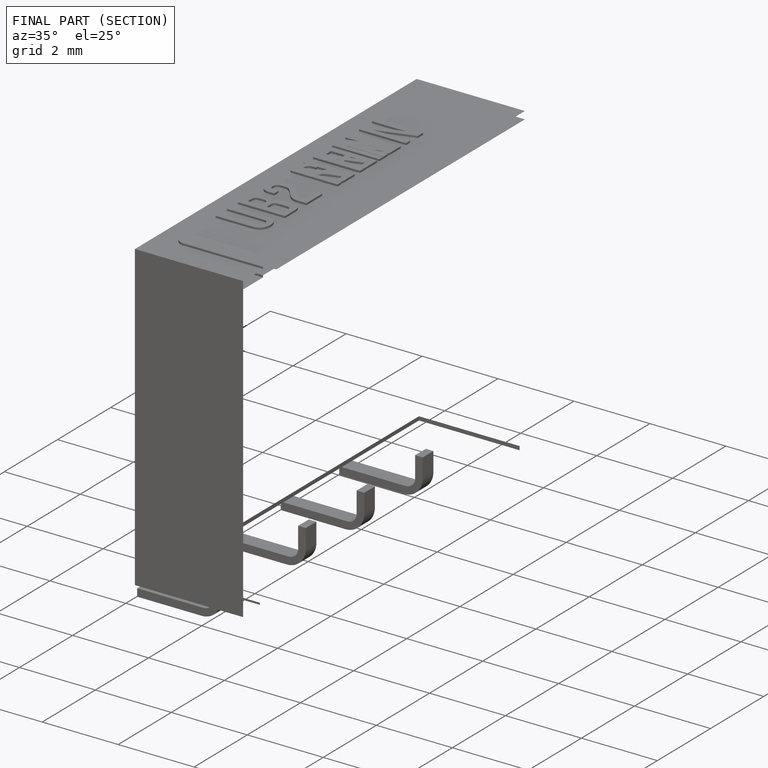
[diagram: finished part — half-section view (interior)]
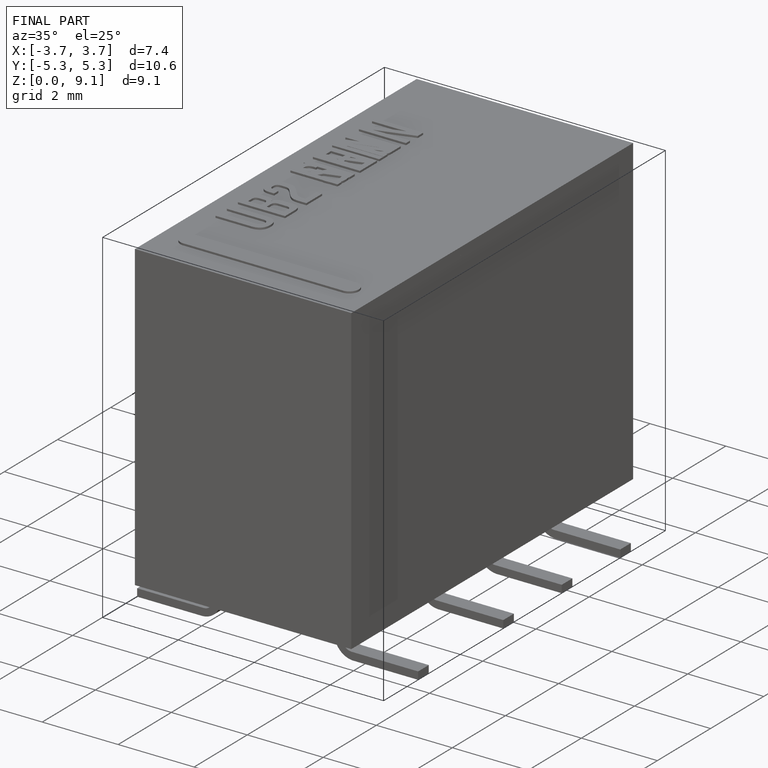
[diagram: finished part — iso view with bounding-box wireframe]
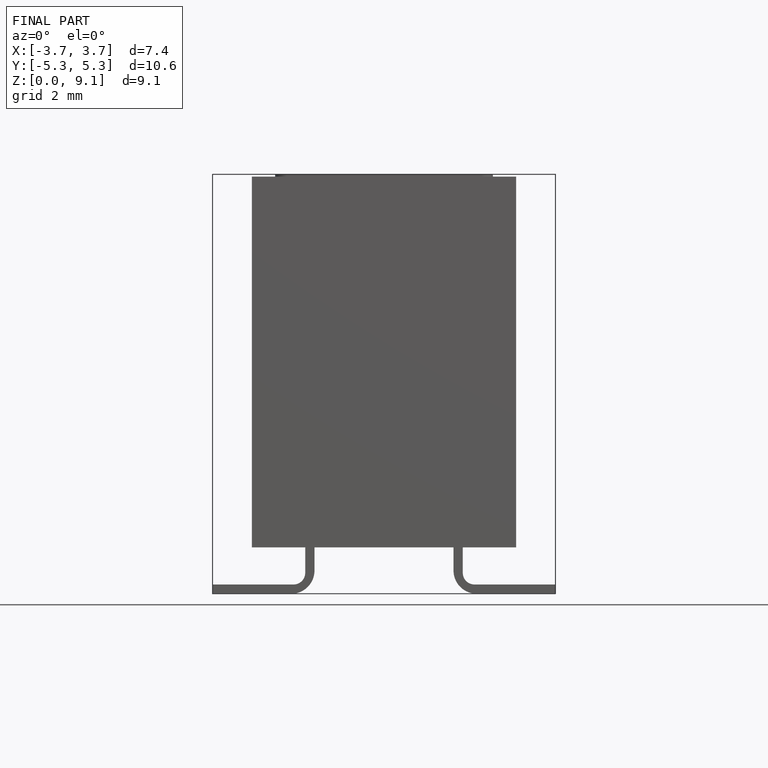
[diagram: finished part — front view with bounding-box wireframe]
